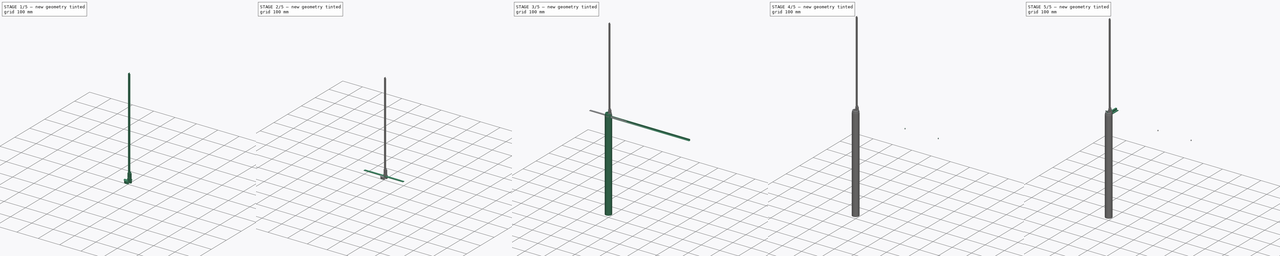
[diagram: build sequence overview — one tinted view per stage of 5, left to right]
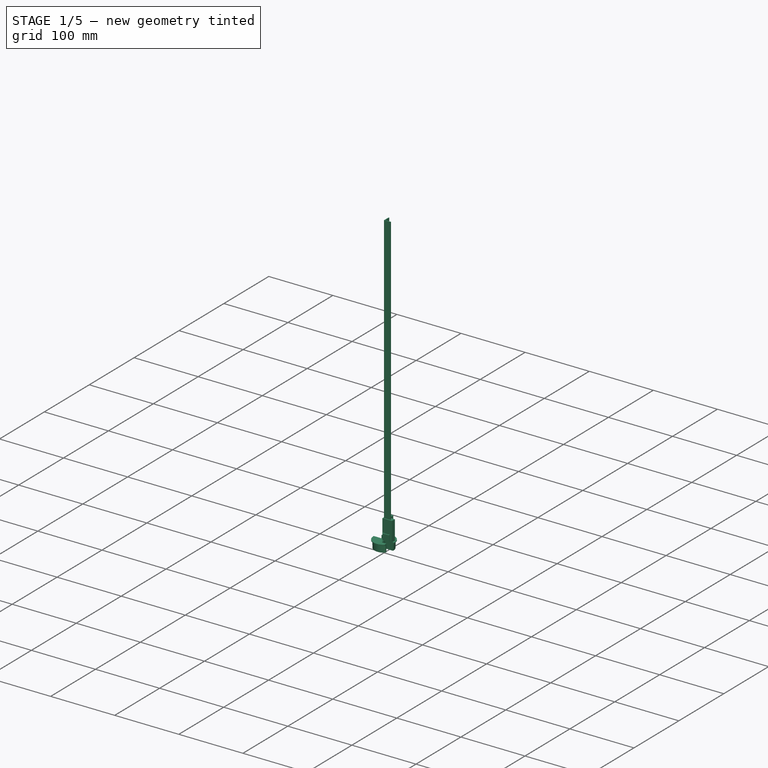
[diagram: stage 1 of 5 — iso view after this stage's code; geometry added in this stage tinted green]
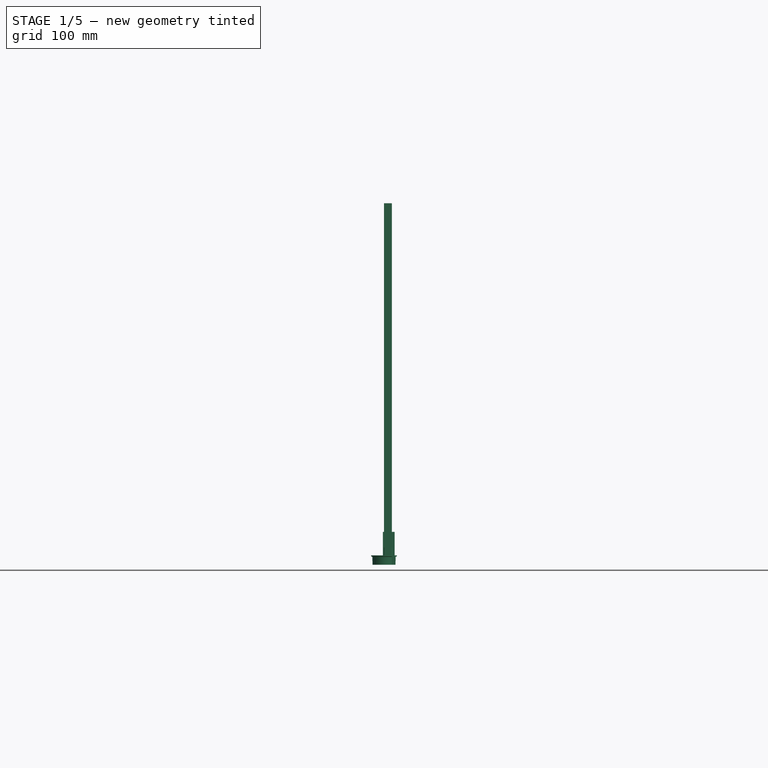
[diagram: stage 1 of 5 — front view after this stage's code; geometry added in this stage tinted green]
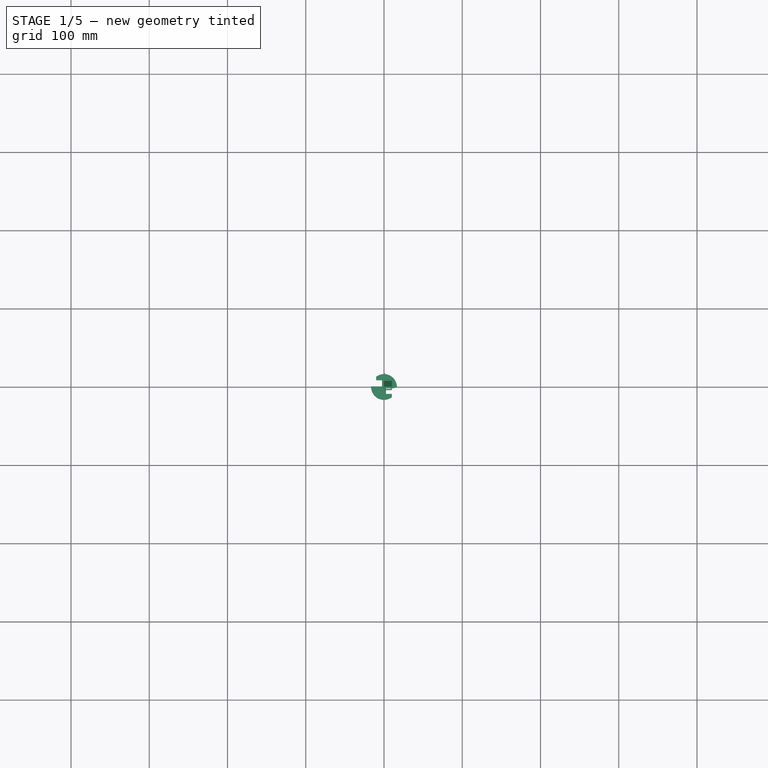
[diagram: stage 1 of 5 — top view after this stage's code; geometry added in this stage tinted green]
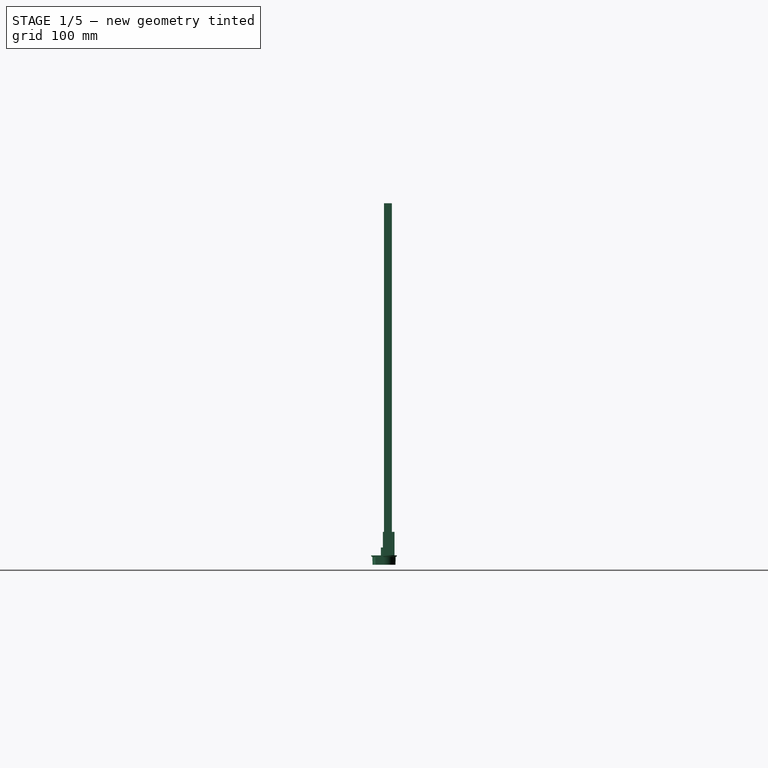
[diagram: stage 1 of 5 — right view after this stage's code; geometry added in this stage tinted green]
FCSTD DOCUMENT  (FreeCAD 0.21R33771 (Git))
Label: angleBarLamp
License: All rights reserved
LicenseURL: https://en.wikipedia.org/wiki/All_rights_reserved
objects: Sketcher::SketchObject×31, PartDesign::CoordinateSystem×21, PartDesign::Body×14, App::Link×13, PartDesign::Pad×12, Part::FeaturePython×12, PartDesign::Pocket×11, App::DocumentObjectGroup×9, PartDesign::Fillet×4, PartDesign::Plane×3, App::Part×3, PartDesign::Revolution×2, PartDesign::Groove×2, PartDesign::Chamfer×2, App::FeaturePython×1, Spreadsheet::Sheet×1, PartDesign::Hole×1, PartDesign::PolarPattern×1, PartDesign::ShapeBinder×1
note: 151 computed .brp shape members not serialized (recipe doc carries the construction recipe); baked Part::Feature solids carry a one-line shape summary decoded from their .brp

FEATURE [Sketcher::SketchObject] Sketch001
  FullyConstrained = false
  MapMode = 5
  Placement = pos=(0,0,0) rot=(1,0,0;1.5708rad)
  Support = -> [XZ_Plane001]
  sketch-geometry (4):
    g0: LineSegment StartX=0 StartY=28.2609 StartZ=0 EndX=10 EndY=28.2609 EndZ=0
    g1: LineSegment StartX=10 StartY=28.2609 StartZ=0 EndX=10 EndY=3 EndZ=0
    g2: LineSegment StartX=10 StartY=3 StartZ=0 EndX=0 EndY=3 EndZ=0
    g3: LineSegment StartX=0 StartY=3 StartZ=0 EndX=0 EndY=28.2609 EndZ=0
  constraints (11):
    c: Coincident(g0,g1)
    c: Coincident(g1,g2)
    c: Coincident(g2,g3)
    c: Coincident(g3,g0)
    c: Horizontal(g0)
    c: Horizontal(g2)
    c: Vertical(g1)
    c: Vertical(g3)
    c: PointOnObject(g0,g-2)
    c: DistanceY(g1) = 3
    c: DistanceX(g0,g0) = 10
FEATURE [Sketcher::SketchObject] Sketch017  label="sk_L-profile10mm"
  FullyConstrained = false
  MapMode = 5
  Support = -> [XY_Plane006]
  sketch-geometry (6):
    g0: LineSegment StartX=0 StartY=0 StartZ=0 EndX=0 EndY=10.1 EndZ=0
    g1: LineSegment StartX=0 StartY=10.1 StartZ=0 EndX=1.1 EndY=10.1 EndZ=0
    g2: LineSegment StartX=1.1 StartY=10.1 StartZ=0 EndX=1.1 EndY=1.1 EndZ=0
    g3: LineSegment StartX=1.1 StartY=1.1 StartZ=0 EndX=10.1 EndY=1.1 EndZ=0
    g4: LineSegment StartX=10.1 StartY=1.1 StartZ=0 EndX=10.1 EndY=0 EndZ=0
    g5: LineSegment StartX=10.1 StartY=0 StartZ=0 EndX=0 EndY=0 EndZ=0
  constraints (17):
    c: Coincident(g-1,g0)
    c: PointOnObject(g0,g-2)
    c: Coincident(g0,g1)
    c: Horizontal(g1)
    c: Coincident(g1,g2)
    c: Vertical(g2)
    c: Coincident(g2,g3)
    c: Horizontal(g3)
    c: Coincident(g3,g4)
    c: Coincident(g4,g5)
    c: Coincident(g5,g0)
    c: Horizontal(g5)
    c: Vertical(g4)
    c: DistanceY(g0,g0) = 10.1
    c: Equal(g0,g5)
    c: DistanceX(g1,g1) = 1.1
    c: Equal(g1,g4)
FEATURE [PartDesign::Pad] Pad005  label="L-profile10mm"
  AllowMultiFace = false
  Direction = (0,0,1)
  Length = 450
  Length2 = 100
  Profile = -> Sketch017
  Type = 0
  expr: Length = Spreadsheet.l_arms
FEATURE [PartDesign::Body] Body006  label="template_L-profile_10mm_foot"
  Group = -> [Sketch017,Pad005,LCS_angleBar10]
  Origin = -> Origin006
  Tip = -> Pad005
FEATURE [Sketcher::SketchObject] Sketch028  label="sk_cableClipProfile"
  FullyConstrained = true
  MapMode = 5
  Support = -> [XY_Plane028]
  sketch-geometry (30):
    g0: LineSegment StartX=0 StartY=0 StartZ=0 EndX=0 EndY=10.1 EndZ=0
    g1: LineSegment StartX=0 StartY=10.1 StartZ=0 EndX=1.2 EndY=10.1 EndZ=0
    g2: LineSegment StartX=1.2 StartY=10.1 StartZ=0 EndX=1.2 EndY=1.2 EndZ=0
    g3: LineSegment StartX=1.2 StartY=1.2 StartZ=0 EndX=10.1 EndY=1.2 EndZ=0
    g4: LineSegment StartX=10.1 StartY=1.2 StartZ=0 EndX=10.1 EndY=0 EndZ=0
    g5: LineSegment StartX=10.1 StartY=0 StartZ=0 EndX=0 EndY=0 EndZ=0
    g6: LineSegment StartX=6.1 StartY=1.2 StartZ=0 EndX=6.1 EndY=2.7 EndZ=0
    g7: LineSegment StartX=6.1 StartY=2.7 StartZ=0 EndX=11.6 EndY=2.7 EndZ=0
    g8: LineSegment StartX=11.6 StartY=2.7 StartZ=0 EndX=11.6 EndY=-1.5 EndZ=0
    g9: LineSegment StartX=11.6 StartY=-1.5 StartZ=0 EndX=10.05 EndY=-1.5 EndZ=0
    g10: LineSegment StartX=-1.5 StartY=-1.5 StartZ=0 EndX=-1.5 EndY=5 EndZ=0
    g11: LineSegment StartX=-1.5 StartY=5 StartZ=0 EndX=0 EndY=5 EndZ=0
    g12: LineSegment StartX=0 StartY=5 StartZ=0 EndX=0 EndY=0 EndZ=0
    g13: LineSegment StartX=0 StartY=0 StartZ=0 EndX=1.55 EndY=0 EndZ=0
    g14: LineSegment StartX=10.1 StartY=0 StartZ=0 EndX=10.1 EndY=1.2 EndZ=0
    g15: LineSegment StartX=10.1 StartY=1.2 StartZ=0 EndX=6.1 EndY=1.2 EndZ=0
    g16: LineSegment StartX=-1.5 StartY=-1.5 StartZ=0 EndX=0 EndY=0 EndZ=0
    g17: LineSegment StartX=11.6 StartY=2.7 StartZ=0 EndX=10.1 EndY=1.2 EndZ=0
    g18: LineSegment StartX=1.55 StartY=0 StartZ=0 EndX=1.55 EndY=-2.5 EndZ=0
    g19: LineSegment StartX=1.55 StartY=-2.5 StartZ=0 EndX=8.55 EndY=-2.5 EndZ=0
    g20: LineSegment StartX=8.55 StartY=-2.5 StartZ=0 EndX=8.55 EndY=0 EndZ=0
    g21: LineSegment StartX=10.05 StartY=-1.5 StartZ=0 EndX=10.05 EndY=-4 EndZ=0
    g22: LineSegment StartX=10.05 StartY=-4 StartZ=0 EndX=0.05 EndY=-4 EndZ=0
    g23: LineSegment StartX=0.05 StartY=-4 StartZ=0 EndX=0.05 EndY=-1.5 EndZ=0
    g24: LineSegment StartX=8.55 StartY=0 StartZ=0 EndX=10.1 EndY=0 EndZ=0
    g25: LineSegment StartX=0.05 StartY=-1.5 StartZ=0 EndX=-1.5 EndY=-1.5 EndZ=0
    g26: LineSegment StartX=0.05 StartY=-1.5 StartZ=0 EndX=1.55 EndY=0 EndZ=0
    g27: LineSegment StartX=8.55 StartY=0 StartZ=0 EndX=10.05 EndY=-1.5 EndZ=0
    g28: LineSegment StartX=8.55 StartY=-2.5 StartZ=0 EndX=10.05 EndY=-4 EndZ=0
    g29: LineSegment StartX=0.05 StartY=-4 StartZ=0 EndX=1.55 EndY=-2.5 EndZ=0
  constraints (78):
    c: Coincident(g0,g1)
    c: Coincident(g1,g2)
    c: Coincident(g2,g3)
    c: Coincident(g3,g4)
    c: Coincident(g4,g5)
    c: Coincident(g0,g5)
    c: Coincident(g0,g-1)
    c: Horizontal(g1)
    c: Horizontal(g3)
    c: Horizontal(g5)
    c: Vertical(g0)
    c: Vertical(g2)
    c: Vertical(g4)
    c: Equal(g1,g4)
    c: Equal(g5,g0)
    c: DistanceX(g5,g5) = 10.1
    c: DistanceY(g4,g4) = 1.2
    c: Coincident(g6,g7)
    c: Coincident(g7,g8)
    c: Coincident(g8,g9)
    c: Coincident(g25,g10)
    c: Coincident(g10,g11)
    c: Coincident(g11,g12)
    c: Coincident(g12,g13)
    c: Coincident(g24,g14)
    c: Coincident(g14,g15)
    c: Coincident(g15,g6)
    c: Coincident(g3,g14)
    c: Coincident(g4,g24)
    c: PointOnObject(g6,g3)
    c: PointOnObject(g11,g0)
    c: Coincident(g0,g12)
    c: Vertical(g8)
    c: Vertical(g6)
    c: Horizontal(g9)
    c: Horizontal(g11)
    c: Horizontal(g7)
    c: Equal(g11,g6)
    c: DistanceX(g11,g11) = 1.5
    c: Vertical(g10)
    c: Coincident(g17,g14)
    c: Coincident(g17,g7)
    c: Angle(g7,g17) = 0.785398
    c: Angle(g16,g10) = 0.785398
    c: Coincident(g25,g16)
    c: Coincident(g0,g16)
    c: DistanceX(g15,g15) = 4
    c: DistanceY(g12,g12) = 5
    c: Coincident(g18,g19)
    c: Coincident(g19,g20)
    c: Coincident(g21,g22)
    c: Coincident(g22,g23)
    c: Coincident(g13,g18)
    c: Coincident(g24,g20)
    c: Tangent(g13,g24)
    c: Coincident(g9,g21)
    c: Tangent(g9,g25)
    c: Vertical(g23)
    c: Vertical(g18)
    c: Vertical(g20)
    c: Vertical(g21)
    c: Horizontal(g19)
    c: Horizontal(g22)
    c: DistanceX(g19,g19) = 7
    c: Coincident(g18,g29)
    c: Coincident(g22,g29)
    c: Coincident(g19,g28)
    c: Coincident(g21,g28)
    c: Coincident(g20,g27)
    c: Coincident(g9,g27)
    c: Parallel(g16,g26)
    c: Parallel(g26,g29)
    c: Coincident(g13,g26)
    c: Coincident(g23,g25)
    c: Coincident(g23,g26)
    c: Angle(g28,g22) = 0.785398
    c: Equal(g13,g24)
    c: DistanceY(g20,g20) = 2.5
FEATURE [PartDesign::Pad] Pad010  label="cableClipExtrude"
  AllowMultiFace = false
  Direction = (1,1,1)
  Length = 10
  Length2 = 100
  Profile = -> Sketch028
  Refine = true
  Type = 0
FEATURE [PartDesign::Fillet] Fillet002  label="cableClipFillet"
  Base = -> Pad010 [Edge23,Edge17,Edge14,Edge8,Edge11,Edge5,Edge26,Edge2,Edge20]
  BaseFeature = -> Pad010
  Radius = 0.5
  Refine = true
  SupportTransform = true
  UseAllEdges = false
FEATURE [PartDesign::Body] Body  label="b_cableClip"
  Group = -> [Sketch028,Pad010,Fillet002,LCS_1]
  Origin = -> Origin028
  Tip = -> Fillet002
FEATURE [Sketcher::SketchObject] Sketch030
  FullyConstrained = true
  MapMode = 5
  Placement = pos=(0,0,0) rot=(1,0,0;1.5708rad)
  Support = -> [XZ_Plane002]
  expr: Constraints[6] = Spreadsheet.motionAngle
  sketch-geometry (3):
    g0: LineSegment StartX=6.5 StartY=-7.5 StartZ=0 EndX=-1.5 EndY=-7.5 EndZ=0
    g1: LineSegment StartX=-1.5 StartY=-7.5 StartZ=0 EndX=-1.5 EndY=-4.58824 EndZ=0
    g2: LineSegment StartX=-1.5 StartY=-4.58824 StartZ=0 EndX=6.5 EndY=-7.5 EndZ=0
  constraints (9):
    c: Horizontal(g0)
    c: DistanceY(g0,g-1) = 7.5
    c: Coincident(g0,g1)
    c: Vertical(g1)
    c: Coincident(g1,g2)
    c: Coincident(g0,g2)
    c: Angle(g2,g0) = 0.349066
    c: DistanceX(g0) = 6.5
    c: DistanceX(g0,g0) = 8
FEATURE [Sketcher::SketchObject] Sketch031
  FullyConstrained = true
  MapMode = 5
  Support = -> [XY_Plane021]
  expr: Constraints[24] = Spreadsheet.w_wall_center / 2
  expr: Constraints[27] = Spreadsheet.r_outer
  expr: Constraints[6] = Spreadsheet.r_outer
  sketch-geometry (11):
    g0: ArcOfCircle CenterX=0 CenterY=0 CenterZ=0 NormalX=0 NormalY=0 NormalZ=1 AngleXU=0 Radius=16.5 StartAngle=6.23772 EndAngle=8.50508
    g1: ArcOfCircle CenterX=0 CenterY=0 CenterZ=0 NormalX=0 NormalY=0 NormalZ=1 AngleXU=0 Radius=16.5 StartAngle=3.09612 EndAngle=5.36349
    g2: LineSegment StartX=16.4829 StartY=-0.75 StartZ=0 EndX=2.5 EndY=-0.75 EndZ=0
    g3: LineSegment StartX=-16.4829 StartY=0.75 StartZ=0 EndX=-2.5 EndY=0.75 EndZ=0
    g4: LineSegment StartX=-2.5 StartY=0.75 StartZ=0 EndX=-2.5 EndY=8.85 EndZ=0
    g5: LineSegment StartX=-2.5 StartY=8.85 StartZ=0 EndX=-10 EndY=8.85 EndZ=0
    g6: LineSegment StartX=-10 StartY=8.85 StartZ=0 EndX=-10 EndY=13.1244 EndZ=0
    g7: LineSegment StartX=10 StartY=-13.1244 StartZ=0 EndX=10 EndY=-8.85 EndZ=0
    g8: LineSegment StartX=10 StartY=-8.85 StartZ=0 EndX=2.5 EndY=-8.85 EndZ=0
    g9: LineSegment StartX=2.5 StartY=-8.85 StartZ=0 EndX=2.5 EndY=-0.75 EndZ=0
    g10: Circle CenterX=0 CenterY=0 CenterZ=0 NormalX=0 NormalY=0 NormalZ=1 AngleXU=0 Radius=16.5
  constraints (30):
    c: Coincident(g0,g-1)
    c: Coincident(g1,g0)
    c: Symmetric(g0,g1,g0)
    c: Coincident(g3,g1)
    c: DistanceX(g2) = 2.5
    c: Symmetric(g2,g3,g0)
    c: Radius(g1) = 16.5
    c: Coincident(g3,g4)
    c: Vertical(g4)
    c: Coincident(g4,g5)
    c: Horizontal(g5)
    c: Coincident(g5,g6)
    c: Vertical(g6)
    c: DistanceX(g5,g0) = 10
    c: Vertical(g7)
    c: Coincident(g7,g8)
    c: Horizontal(g8)
    c: Coincident(g8,g9)
    c: Coincident(g9,g2)
    c: Vertical(g9)
    c: Equal(g9,g4)
    c: Horizontal(g2)
    c: Coincident(g0,g2)
    c: Horizontal(g3)
    c: DistanceY(g3) = 0.75
    c: DistanceY(g9,g9) = 8.1
    c: Coincident(g10,g0)
    c: Radius(g10) = 16.5
    c: Coincident(g1,g7)
    c: Coincident(g0,g6)
FEATURE [PartDesign::Pad] Pad011
  Direction = (0,0,1)
  Length = 12
  Length2 = 100
  Profile = -> Sketch031
  Reversed = true
  Type = 0
  expr: Length = Spreadsheet.h_topBlockBase
FEATURE [Sketcher::SketchObject] Sketch032
  AttachmentOffset = pos=(0,0,-0.6) rot=(0,0,1;0rad)
  FullyConstrained = false
  MapMode = 5
  Placement = pos=(0,0,-0.6) rot=(0,0,1;0rad)
  Support = -> [XY_Plane021]
  sketch-geometry (6):
    g0: LineSegment StartX=-0.55 StartY=3.04345 StartZ=0 EndX=9.55 EndY=3.04345 EndZ=0
    g1: LineSegment StartX=9.55 StartY=3.04345 StartZ=0 EndX=9.55 EndY=1.94345 EndZ=0
    g2: LineSegment StartX=9.55 StartY=1.94345 StartZ=0 EndX=0.55 EndY=1.94345 EndZ=0
    g3: LineSegment StartX=0.55 StartY=1.94345 StartZ=0 EndX=0.55 EndY=-7.05655 EndZ=0
    g4: LineSegment StartX=0.55 StartY=-7.05655 StartZ=0 EndX=-0.55 EndY=-7.05655 EndZ=0
    g5: LineSegment StartX=-0.55 StartY=-7.05655 StartZ=0 EndX=-0.55 EndY=3.04345 EndZ=0
  constraints (16):
    c: Horizontal(g0)
    c: Coincident(g0,g1)
    c: Vertical(g1)
    c: Coincident(g1,g2)
    c: Horizontal(g2)
    c: Coincident(g2,g3)
    c: Coincident(g3,g4)
    c: Coincident(g4,g5)
    c: Coincident(g5,g0)
    c: Vertical(g5)
    c: Equal(g4,g1)
    c: DistanceX(g0,g0) = 10.1
    c: DistanceY(g1,g1) = 1.1
    c: Equal(g5,g0)
    c: Vertical(g3)
    c: Symmetric(g3,g4,g-2)
FEATURE [PartDesign::Pocket] Pocket009
  BaseFeature = -> Pad011
  Direction = (0,0,-1)
  Length = 15
  Length2 = 100
  Profile = -> Sketch032
  Type = 1
FEATURE [Sketcher::SketchObject] Sketch035
  AttachmentOffset = pos=(0,0,-10) rot=(0,0,1;0rad)
  FullyConstrained = true
  MapMode = 5
  Placement = pos=(0,0,-10) rot=(0,0,1;0rad)
  Support = -> [XY_Plane021]
  sketch-geometry (6):
    g0: LineSegment StartX=0.55 StartY=2.15 StartZ=0 EndX=1.65 EndY=2.15 EndZ=0
    g1: LineSegment StartX=1.65 StartY=2.15 StartZ=0 EndX=1.65 EndY=-8.15 EndZ=0
    g2: LineSegment StartX=1.65 StartY=-8.15 StartZ=0 EndX=-8.45 EndY=-8.15 EndZ=0
    g3: LineSegment StartX=-8.45 StartY=-8.15 StartZ=0 EndX=-8.45 EndY=-7.05 EndZ=0
    g4: LineSegment StartX=-8.45 StartY=-7.05 StartZ=0 EndX=0.55 EndY=-7.05 EndZ=0
    g5: LineSegment StartX=0.55 StartY=-7.05 StartZ=0 EndX=0.55 EndY=2.15 EndZ=0
  constraints (18):
    c: Horizontal(g0)
    c: Coincident(g0,g1)
    c: Vertical(g1)
    c: Coincident(g1,g2)
    c: Horizontal(g2)
    c: Coincident(g2,g3)
    c: Coincident(g3,g4)
    c: Horizontal(g4)
    c: Coincident(g4,g5)
    c: Coincident(g5,g0)
    c: Equal(g0,g3)
    c: Vertical(g3)
    c: DistanceY(g1,g1) = 10.3
    c: DistanceX(g0,g0) = 1.1
    c: DistanceX(g2,g2) = 10.1
    c: Vertical(g5)
    c: DistanceX(g4) = 0.55
    c: DistanceY(g4) = -7.05
FEATURE [PartDesign::Pocket] Pocket010
  BaseFeature = -> Pocket009
  Direction = (0,0,-1)
  Length = 5
  Length2 = 100
  Profile = -> Sketch035
  Type = 0
FEATURE [Sketcher::SketchObject] Sketch039
  FullyConstrained = true
  MapMode = 5
  Support = -> [XY_Plane023]
  sketch-geometry (6):
    g0: LineSegment StartX=5 StartY=5 StartZ=0 EndX=13.5 EndY=5 EndZ=0
    g1: LineSegment StartX=13.5 StartY=5 StartZ=0 EndX=13.5 EndY=-1.5 EndZ=0
    g2: LineSegment StartX=13.5 StartY=-1.5 StartZ=0 EndX=-1.5 EndY=-1.5 EndZ=0
    g3: LineSegment StartX=-1.5 StartY=-1.5 StartZ=0 EndX=-1.5 EndY=13.5 EndZ=0
    g4: LineSegment StartX=-1.5 StartY=13.5 StartZ=0 EndX=5 EndY=13.5 EndZ=0
    g5: LineSegment StartX=5 StartY=13.5 StartZ=0 EndX=5 EndY=5 EndZ=0
  constraints (18):
    c: Horizontal(g0)
    c: Coincident(g0,g1)
    c: Vertical(g1)
    c: Coincident(g1,g2)
    c: Coincident(g2,g3)
    c: Coincident(g3,g4)
    c: Horizontal(g4)
    c: Coincident(g4,g5)
    c: Coincident(g5,g0)
    c: Vertical(g5)
    c: Vertical(g3)
    c: Horizontal(g2)
    c: Equal(g3,g2)
    c: DistanceX(g2,g2) = 15
    c: Equal(g1,g4)
    c: DistanceX(g4,g4) = 6.5
    c: DistanceX(g2,g-1) = 1.5
    c: DistanceY(g2,g-1) = 1.5
FEATURE [PartDesign::Pad] Pad
  Direction = (1,1,1)
  Length = 30
  Length2 = 100
  Profile = -> Sketch039
  Type = 0
FEATURE [Sketcher::SketchObject] Sketch046
  FullyConstrained = false
  MapMode = 5
  Placement = pos=(0,0,0) rot=(0.57735,0.57735,0.57735;2.0944rad)
  Support = -> [YZ_Plane021]
  expr: Constraints[11] = Spreadsheet.r_outer
  expr: Constraints[12] = Spreadsheet.r_inner
  sketch-geometry (6):
    g0: LineSegment StartX=16.5 StartY=0 StartZ=0 EndX=16.5 EndY=-1.08055 EndZ=0
    g1: LineSegment StartX=16.5 StartY=-1.08055 StartZ=0 EndX=14.9353 EndY=-1.99693 EndZ=0
    g2: LineSegment StartX=14.9353 StartY=-1.99693 StartZ=0 EndX=14.625 EndY=-13.5266 EndZ=0
    g3: LineSegment StartX=14.625 StartY=-13.5266 StartZ=0 EndX=22.4612 EndY=-13.5266 EndZ=0
    g4: LineSegment StartX=22.4612 StartY=-13.5266 StartZ=0 EndX=22.4612 EndY=0 EndZ=0
    g5: LineSegment StartX=22.4612 StartY=0 StartZ=0 EndX=16.5 EndY=0 EndZ=0
  constraints (13):
    c: PointOnObject(g0,g-1)
    c: Vertical(g0)
    c: Coincident(g0,g1)
    c: Coincident(g1,g2)
    c: Coincident(g2,g3)
    c: Horizontal(g3)
    c: Coincident(g3,g4)
    c: Vertical(g4)
    c: Coincident(g4,g5)
    c: Horizontal(g5)
    c: Coincident(g0,g5)
    c: DistanceX(g0) = 16.5
    c: DistanceX(g2) = 14.625
FEATURE [PartDesign::Groove] Groove
  Angle = 360
  Axis = (-2e-16,3e-16,1)
  Base = (0,0,0)
  BaseFeature = -> Pocket010
  Profile = -> Sketch046
  ReferenceAxis = -> Sketch046 [V_Axis]
  Refine = true
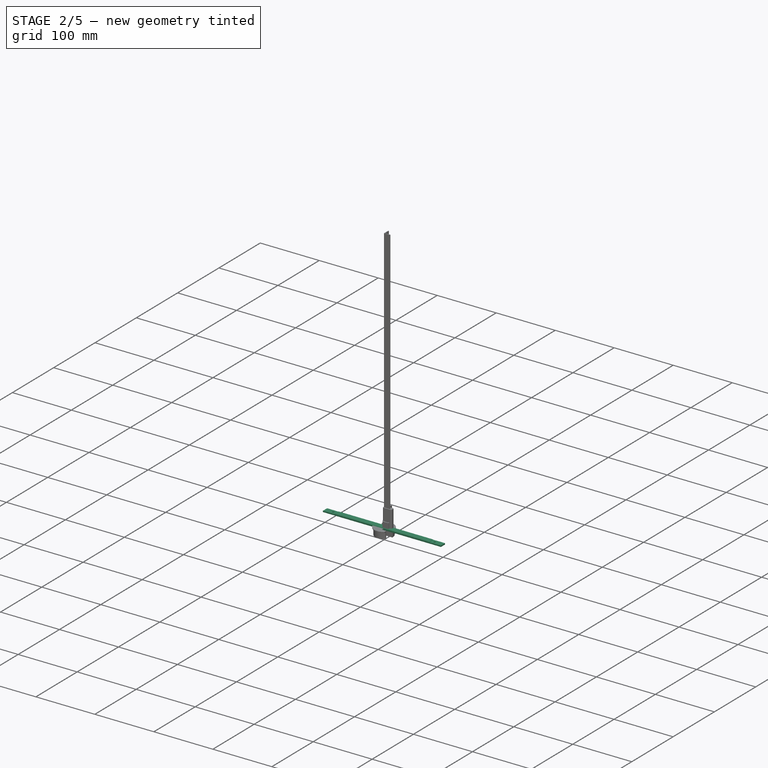
[diagram: stage 2 of 5 — iso view after this stage's code; geometry added in this stage tinted green]
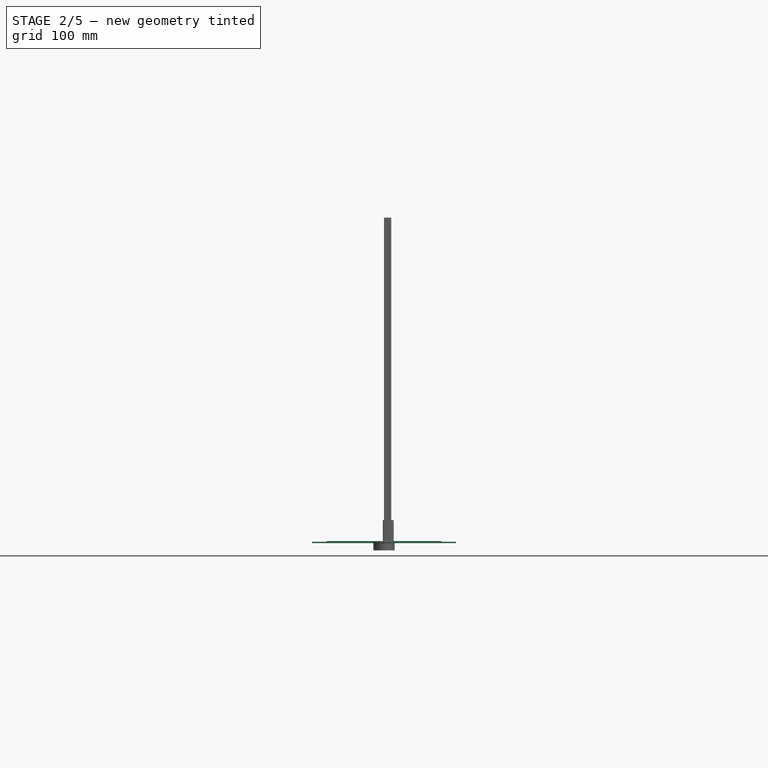
[diagram: stage 2 of 5 — front view after this stage's code; geometry added in this stage tinted green]
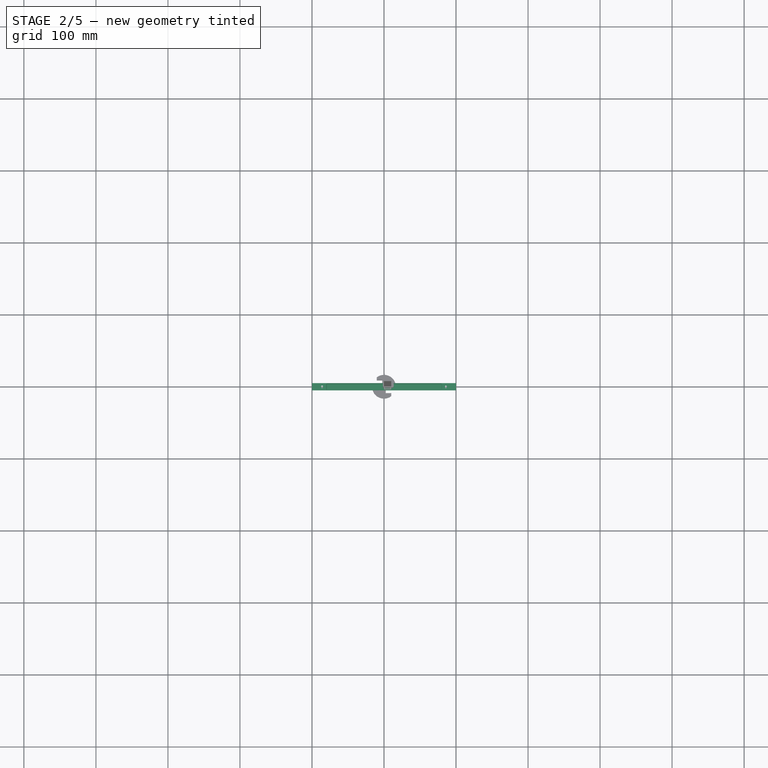
[diagram: stage 2 of 5 — top view after this stage's code; geometry added in this stage tinted green]
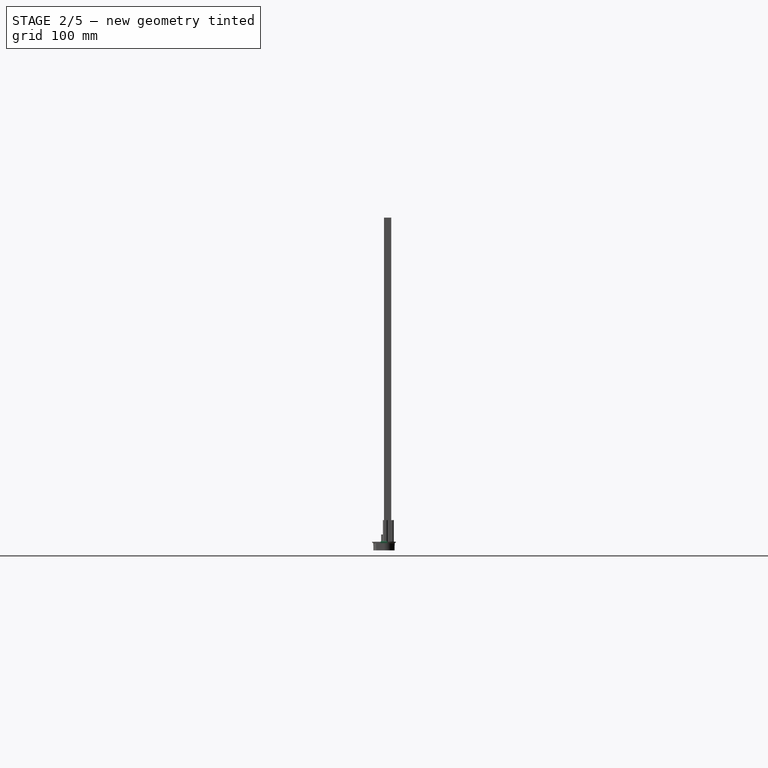
[diagram: stage 2 of 5 — right view after this stage's code; geometry added in this stage tinted green]
FEATURE [Sketcher::SketchObject] Sketch040
  FullyConstrained = true
  MapMode = 2
  Support = -> [X_Axis023]
  sketch-geometry (6):
    g0: LineSegment StartX=1 StartY=11.1 StartZ=0 EndX=2.1 EndY=11.1 EndZ=0
    g1: LineSegment StartX=2.1 StartY=11.1 StartZ=0 EndX=2.1 EndY=2.1 EndZ=0
    g2: LineSegment StartX=2.1 StartY=2.1 StartZ=0 EndX=11.1 EndY=2.1 EndZ=0
    g3: LineSegment StartX=11.1 StartY=2.1 StartZ=0 EndX=11.1 EndY=1 EndZ=0
    g4: LineSegment StartX=11.1 StartY=1 StartZ=0 EndX=1 EndY=1 EndZ=0
    g5: LineSegment StartX=1 StartY=1 StartZ=0 EndX=1 EndY=11.1 EndZ=0
  constraints (18):
    c: Coincident(g0,g1)
    c: Vertical(g1)
    c: Coincident(g1,g2)
    c: Horizontal(g2)
    c: Coincident(g2,g3)
    c: Vertical(g3)
    c: Coincident(g3,g4)
    c: Horizontal(g4)
    c: Coincident(g4,g5)
    c: Coincident(g5,g0)
    c: Vertical(g5)
    c: Horizontal(g0)
    c: Equal(g3,g0)
    c: Equal(g5,g4)
    c: DistanceX(g4,g4) = 10.1
    c: DistanceX(g0,g0) = 1.1
    c: DistanceY(g4) = 1
    c: DistanceX(g4) = 1
FEATURE [Sketcher::SketchObject] Sketch041
  FullyConstrained = true
  MapMode = 5
  Placement = pos=(0,0,30) rot=(0,0,1;0rad)
  Support = -> [DatumPlane001]
  sketch-geometry (6):
    g0: LineSegment StartX=0 StartY=10.1 StartZ=0 EndX=1.1 EndY=10.1 EndZ=0
    g1: LineSegment StartX=1.1 StartY=10.1 StartZ=0 EndX=1.1 EndY=1.1 EndZ=0
    g2: LineSegment StartX=1.1 StartY=1.1 StartZ=0 EndX=10.1 EndY=1.1 EndZ=0
    g3: LineSegment StartX=10.1 StartY=1.1 StartZ=0 EndX=10.1 EndY=0 EndZ=0
    g4: LineSegment StartX=10.1 StartY=0 StartZ=0 EndX=0 EndY=0 EndZ=0
    g5: LineSegment StartX=0 StartY=0 StartZ=0 EndX=0 EndY=10.1 EndZ=0
  constraints (17):
    c: Coincident(g0,g1)
    c: Vertical(g1)
    c: Coincident(g1,g2)
    c: Horizontal(g2)
    c: Coincident(g2,g3)
    c: Vertical(g3)
    c: Coincident(g3,g4)
    c: Horizontal(g4)
    c: Coincident(g4,g5)
    c: Coincident(g5,g0)
    c: Vertical(g5)
    c: Horizontal(g0)
    c: Equal(g3,g0)
    c: Equal(g5,g4)
    c: DistanceX(g4,g4) = 10.1
    c: DistanceX(g0,g0) = 1.1
    c: Coincident(g4,g-1)
FEATURE [PartDesign::Pocket] Pocket012
  BaseFeature = -> Pad
  Direction = (1,1,1)
  Length = 28
  Length2 = 100
  Profile = -> Sketch041
  Type = 0
FEATURE [PartDesign::Pocket] Pocket013
  BaseFeature = -> Pocket012
  Direction = (1,1,1)
  Length = 28
  Length2 = 100
  Profile = -> Sketch040
  Reversed = true
  Type = 0
FEATURE [Sketcher::SketchObject] Sketch042
  FullyConstrained = true
  MapMode = 5
  Support = -> [XY_Plane023]
  sketch-geometry (6):
    g0: LineSegment StartX=2 StartY=2.1 StartZ=0 EndX=3.1 EndY=2.1 EndZ=0
    g1: LineSegment StartX=3.1 StartY=2.1 StartZ=0 EndX=3.1 EndY=12.2 EndZ=0
    g2: LineSegment StartX=3.1 StartY=12.2 StartZ=0 EndX=-7 EndY=12.2 EndZ=0
    g3: LineSegment StartX=-7 StartY=12.2 StartZ=0 EndX=-7 EndY=11.1 EndZ=0
    g4: LineSegment StartX=-7 StartY=11.1 StartZ=0 EndX=2 EndY=11.1 EndZ=0
    g5: LineSegment StartX=2 StartY=11.1 StartZ=0 EndX=2 EndY=2.1 EndZ=0
  constraints (18):
    c: Horizontal(g0)
    c: Coincident(g0,g1)
    c: Vertical(g1)
    c: Coincident(g1,g2)
    c: Horizontal(g2)
    c: Coincident(g2,g3)
    c: Coincident(g3,g4)
    c: Horizontal(g4)
    c: Coincident(g4,g5)
    c: Coincident(g5,g0)
    c: Vertical(g5)
    c: Vertical(g3)
    c: Equal(g3,g0)
    c: Equal(g1,g2)
    c: DistanceY(g1,g1) = 10.1
    c: DistanceX(g0,g0) = 1.1
    c: DistanceY(g-1,g0) = 2.1
    c: DistanceX(g-1,g0) = 2
FEATURE [PartDesign::Pocket] Pocket014
  BaseFeature = -> Pocket013
  Direction = (0,0,-1)
  Length = 18
  Length2 = 100
  Profile = -> Sketch042
  Reversed = true
  Type = 0
FEATURE [App::Link] nut
  AttachedBy = #LCS_0001
  AttachedTo = Parent Assembly#LCS_2
  AttachmentOffset = pos=(0,-7.6,0) rot=(1,0,0;1.5708rad)
  LinkPlacement = pos=(6.5,-8.35,3) rot=(1,0,0;1.5708rad)
  LinkedObject = -> b_nut
  Placement = pos=(6.5,-8.35,3) rot=(1,0,0;1.5708rad)
  SolverId = Asm4EE
  expr: Placement = LCS_2.Placement * AttachmentOffset * LCS_0001.Placement ^ -1
FEATURE [App::Link] spacer
  AttachedBy = #LCS_0003
  AttachedTo = LProfile_8mm_A#LCS_1004
  AttachmentOffset = pos=(0,-1,0) rot=(-1,0,0;4.71239rad)
  LinkPlacement = pos=(6.5,-1.75,3) rot=(-1,0,0;4.71239rad)
  LinkedObject = -> b_spacer
  Placement = pos=(6.5,-1.75,3) rot=(-1,0,0;4.71239rad)
  SolverId = Asm4EE
  expr: Placement = LProfile_8mm_A.Placement * LCS_1004.Placement * AttachmentOffset * LCS_0003.Placement ^ -1
FEATURE [Part::FeaturePython] Circular_spacer  # Draft array (typed FeaturePython)
  AngleStep = 180
  ArrayType = Circular Array
  Axis = -> Z_Axis
  AxisPlacement = pos=(0,0,0) rot=(0,0,1.73205;3.14159rad)
  Count = 2
  Index = 1
  PlacementList = 2 placements: [(6.5,-1.75,3),(-6.5,1.75,3)]
  Placer = pos=(0,0,0) rot=(0,0,1;3.14159rad)
  ScaleList = (2) [(1,1,1),(1,1,1)]
  Scaler = 1
  ShowElement = false
  SourceObject = -> spacer
  expr: .Placer.Rotation.Angle = AngleStep * Index
  expr: AngleStep = 360 / Count
FEATURE [Part::FeaturePython] Circular_nut  # Draft array (typed FeaturePython)
  AngleStep = 180
  ArrayType = Circular Array
  Axis = -> Z_Axis
  AxisPlacement = pos=(0,0,0) rot=(0,0,1.73205;3.14159rad)
  Count = 2
  Index = 1
  PlacementList = 2 placements: [(6.5,-8.35,3),(-6.5,8.35,3)]
  Placer = pos=(0,0,0) rot=(0,0,1;3.14159rad)
  ScaleList = (2) [(1,1,1),(1,1,1)]
  Scaler = 1
  ShowElement = false
  SourceObject = -> nut
  expr: .Placer.Rotation.Angle = AngleStep * Index
  expr: AngleStep = 360 / Count
FEATURE [Part::FeaturePython] Circular_Screw  label="Circular_M3x28-Screw"  # Draft array (typed FeaturePython)
  AngleStep = 180
  ArrayType = Circular Array
  Axis = -> Z_Axis
  AxisPlacement = pos=(0,0,0) rot=(0,0,1.73205;3.14159rad)
  Count = 2
  Index = 1
  PlacementList = 2 placements: [(6.5,13.15,3),(-6.5,-13.15,3)]
  Placer = pos=(0,0,0) rot=(0,0,1;3.14159rad)
  ScaleList = (2) [(1,1,1),(1,1,1)]
  Scaler = 1
  ShowElement = false
  SourceObject = -> Screw
  expr: .Placer.Rotation.Angle = AngleStep * Index
  expr: AngleStep = 360 / Count
FEATURE [PartDesign::CoordinateSystem] LCS_1005
  AttacherType = Attacher::AttachEngine3D
  MapMode = 2
  Support = -> [X_Axis032]
FEATURE [PartDesign::CoordinateSystem] LCS_1006
  AttacherType = Attacher::AttachEngine3D
  MapMode = 2
  Support = -> [X_Axis033]
FEATURE [PartDesign::CoordinateSystem] LCS_1007
  AttacherType = Attacher::AttachEngine3D
  MapMode = 2
  Support = -> [X_Axis034]
FEATURE [Sketcher::SketchObject] Sketch056
  FullyConstrained = true
  MapMode = 5
  Support = -> [XY_Plane032]
  sketch-geometry (8):
    g0: LineSegment StartX=-100 StartY=5 StartZ=0 EndX=100 EndY=5 EndZ=0
    g1: LineSegment StartX=100 StartY=5 StartZ=0 EndX=100 EndY=-5 EndZ=0
    g2: LineSegment StartX=100 StartY=-5 StartZ=0 EndX=-100 EndY=-5 EndZ=0
    g3: LineSegment StartX=-100 StartY=-5 StartZ=0 EndX=-100 EndY=5 EndZ=0
    g4: Circle CenterX=-86 CenterY=0 CenterZ=0 NormalX=0 NormalY=0 NormalZ=1 AngleXU=0 Radius=1.5
    g5: Circle CenterX=86 CenterY=0 CenterZ=0 NormalX=0 NormalY=0 NormalZ=1 AngleXU=0 Radius=1.5
    g6: LineSegment StartX=-100 StartY=0 StartZ=0 EndX=-86 EndY=0 EndZ=0
    g7: LineSegment StartX=86 StartY=0 StartZ=0 EndX=100 EndY=0 EndZ=0
  constraints (22):
    c: Coincident(g0,g1)
    c: Coincident(g2,g3)
    c: Coincident(g3,g0)
    c: Horizontal(g2)
    c: Vertical(g1)
    c: Symmetric(g2,g0,g-1)
    c: DistanceX(g0,g0) = 200
    c: DistanceY(g1,g1) = 10
    c: PointOnObject(g5,g-1)
    c: PointOnObject(g6,g3)
    c: Horizontal(g6)
    c: DistanceX(g6,g6) = 14
    c: Equal(g4,g5)
    c: Diameter(g4) = 3
    c: Coincident(g1,g2)
    c: Coincident(g6,g4)
    c: Symmetric(g0,g0,g-2)
    c: Coincident(g7,g5)
    c: PointOnObject(g7,g1)
    c: Horizontal(g7)
    c: Equal(g7,g6)
    c: PointOnObject(g4,g-1)
FEATURE [PartDesign::Pad] Pad018
  Direction = (0,0,1)
  Length = 2
  Length2 = 10
  Profile = -> Sketch056
  ReferenceAxis = -> Sketch056 [N_Axis]
  Reversed = true
  Type = 0
FEATURE [PartDesign::Body] b_led_heatsink
  Group = -> [LCS_1005,Sketch056,Pad018]
  Origin = -> Origin032
  Tip = -> Pad018
FEATURE [Sketcher::SketchObject] Sketch057
  FullyConstrained = true
  MapMode = 5
  Support = -> [XY_Plane033]
  sketch-geometry (10):
    g0: ArcOfCircle CenterX=-79 CenterY=3.5 CenterZ=0 NormalX=0 NormalY=0 NormalZ=1 AngleXU=0 Radius=1 StartAngle=1.5708 EndAngle=3.14159
    g1: LineSegment StartX=-79 StartY=4.5 StartZ=0 EndX=79 EndY=4.5 EndZ=0
    g2: ArcOfCircle CenterX=79 CenterY=3.5 CenterZ=0 NormalX=0 NormalY=0 NormalZ=1 AngleXU=0 Radius=1 StartAngle=2e-16 EndAngle=1.5708
    g3: LineSegment StartX=80 StartY=3.5 StartZ=0 EndX=80 EndY=-3.5 EndZ=0
    g4: ArcOfCircle CenterX=79 CenterY=-3.5 CenterZ=0 NormalX=0 NormalY=0 NormalZ=1 AngleXU=0 Radius=1 StartAngle=4.71239 EndAngle=6.28319
    g5: LineSegment StartX=79 StartY=-4.5 StartZ=0 EndX=-79 EndY=-4.5 EndZ=0
    g6: ArcOfCircle CenterX=-79 CenterY=-3.5 CenterZ=0 NormalX=0 NormalY=0 NormalZ=1 AngleXU=0 Radius=1 StartAngle=3.14159 EndAngle=4.71239
    g7: LineSegment StartX=-80 StartY=-3.5 StartZ=0 EndX=-80 EndY=3.5 EndZ=0
    g8: GeomPoint X=-80 Y=4.5 Z=0
    g9: GeomPoint X=80 Y=-4.5 Z=0
  constraints (22):
    c: Tangent(g0,g1) = 1.5708
    c: Tangent(g1,g2) = 1.5708
    c: Tangent(g2,g3) = 1.5708
    c: Tangent(g3,g4) = 1.5708
    c: Tangent(g4,g5) = 1.5708
    c: Tangent(g5,g6) = 1.5708
    c: Tangent(g6,g7) = 1.5708
    c: Tangent(g7,g0) = 1.5708
    c: Horizontal(g1)
    c: Horizontal(g5)
    c: Vertical(g3)
    c: Vertical(g7)
    c: Equal(g0,g2)
    c: PointOnObject(g8,g1)
    c: PointOnObject(g8,g7)
    c: PointOnObject(g9,g3)
    c: PointOnObject(g9,g5)
    c: DistanceX(g0,g2) = 160
    c: Radius(g2) = 1
    c: DistanceY(g5,g0) = 9
    c: Symmetric(g6,g0,g-1)
    c: Symmetric(g4,g6,g-2)
FEATURE [PartDesign::Pad] Pad019
  Direction = (0,0,1)
  Length = 1
  Length2 = 10
  Profile = -> Sketch057
  ReferenceAxis = -> Sketch057 [N_Axis]
  Type = 0
FEATURE [PartDesign::Fillet] Fillet004
  Base = -> Pad019 [Edge13]
  BaseFeature = -> Pad019
  Radius = 0.9
  SupportTransform = false
  UseAllEdges = false
FEATURE [Part::FeaturePython] Circular_Screw001  label="Circular_M3x4-LEDScrew_A"  # Draft array (typed FeaturePython)
  AngleStep = 180
  ArrayType = Circular Array
  Axis = -> Z_Axis
  AxisPlacement = pos=(0,0,0) rot=(0,0,1.73205;3.14159rad)
  Count = 2
  Index = 1
  PlacementList = 2 placements: [(431.5,-5.25,-3.5),(-431.5,5.25,-3.5)]
  Placer = pos=(0,0,0) rot=(0,0,1;3.14159rad)
  ScaleList = (2) [(1,1,1),(1,1,1)]
  Scaler = 1
  ShowElement = false
  SourceObject = -> Screw001
  expr: .Placer.Rotation.Angle = AngleStep * Index
  expr: AngleStep = 360 / Count
FEATURE [Part::FeaturePython] Circular_Screw002  label="Circular_M3x4-LEDScrew_B"  # Draft array (typed FeaturePython)
  AngleStep = 180
  ArrayType = Circular Array
  Axis = -> Z_Axis
  AxisPlacement = pos=(0,0,0) rot=(0,0,1.73205;3.14159rad)
  Count = 2
  Index = 1
  PlacementList = 2 placements: [(259.5,-5.25,-3.5),(-259.5,5.25,-3.5)]
  Placer = pos=(0,0,0) rot=(0,0,1;3.14159rad)
  ScaleList = (2) [(1,1,1),(1,1,1)]
  Scaler = 1
  ShowElement = false
  SourceObject = -> Screw002
  expr: .Placer.Rotation.Angle = AngleStep * Index
  expr: AngleStep = 360 / Count
FEATURE [App::DocumentObjectGroup] Group002  label="g_Fasteners"
  Group = -> [Screw,nut,spacer,Circular_spacer,Circular_nut,Circular_Screw,Screw001,Screw002,Circular_Screw001,Circular_Screw002]
FEATURE [Part::FeaturePython] Circular_led_assembly  # Draft array (typed FeaturePython)
  AngleStep = 180
  ArrayType = Circular Array
  Axis = -> Z_Axis
  AxisPlacement = pos=(0,0,0) rot=(0,0,1.73205;3.14159rad)
  Count = 2
  Index = 1
  PlacementList = 2 placements: [(345.5,-5.25,-3.5),(-345.5,5.25,-3.5)]
  Placer = pos=(0,0,0) rot=(0,0,1;3.14159rad)
  ScaleList = (2) [(1,1,1),(1,1,1)]
  Scaler = 1
  ShowElement = false
  SourceObject = -> led_assembly
  expr: .Placer.Rotation.Angle = AngleStep * Index
  expr: AngleStep = 360 / Count
FEATURE [App::Link] pipe_dn32
  AttachedBy = #LCS_0007
  AttachedTo = Parent Assembly#LCS_Origin
  AttachmentOffset = pos=(-25,-25,-508) rot=(0,0,1;0rad)
  LinkPlacement = pos=(-25,-25,-508) rot=(0,0,1;0rad)
  LinkedObject = -> b_tube_dn32
  Placement = pos=(-25,-25,-508) rot=(0,0,1;0rad)
  SolverId = Asm4EE
  expr: .AttachmentOffset.Base.x = Variables.time < Variables.motion2_start ? -25 : (Variables.time < Variables.motion3_start ? Variables.pipeopen_xpos : 0)
  expr: .AttachmentOffset.Base.y = Variables.time < Variables.motion2_start ? -25 : (Variables.time < Variables.motion3_start ? Variables.pipeopen_xpos : 0)
  expr: .AttachmentOffset.Base.z = Variables.time < Variables.motion4_start ? Variables.pipe_zoffset + Variables.pipe_zopen : (Variables.time < Variables.motion4_end ? Variables.pipeopen_zpos : Variables.pipe_zoffset)
  expr: Placement = LCS_Origin.Placement * AttachmentOffset * LCS_0007.Placement ^ -1
FEATURE [App::Link] bottom_plug  label="base_cap"
  AttachedBy = #LCS_bottom_blog
  AttachedTo = pipe_dn32#LCS_0007
  AttachmentOffset = pos=(0,0,-480) rot=(0,1,0;4.71239rad)
  LinkPlacement = pos=(-25,-25,-993) rot=(0,0,1;4.71239rad)
  LinkedObject = -> Body015
  Placement = pos=(-25,-25,-993) rot=(0,0,1;4.71239rad)
  SolverId = Asm4EE
  expr: Placement = pipe_dn32.Placement * LCS_0007.Placement * AttachmentOffset * LCS_bottom_blog.Placement ^ -1
FEATURE [App::DocumentObjectGroup] Group003  label="g_Housing"
  Group = -> [pipe_dn32,bottom_plug]
FEATURE [App::DocumentObjectGroup] Group005  label="LEDs"
  Group = -> [Circular_led_assembly]
FEATURE [PartDesign::Fillet] Fillet005
  Base = -> Pocket014 [Edge8,Edge32,Edge2,Edge5]
  BaseFeature = -> Pocket014
  Radius = 2
  SupportTransform = false
  UseAllEdges = false
FEATURE [PartDesign::Body] b_bottom_connector
  Group = -> [LCS_0004,Sketch039,Pad,DatumPlane001,Sketch040,Sketch041,Pocket012,Pocket013,Sketch042,Pocket014,Fillet005]
  Origin = -> Origin023
  Placement = pos=(0,0,0) rot=(0.707107,0.707107,0;3.14159rad)
  Tip = -> Fillet005
FEATURE [App::Part] p_bottom_connector
  Group = -> [LCS_1003,b_bottom_connector]
  Origin = -> Origin029
FEATURE [App::DocumentObjectGroup] Parts
  Group = -> [Body,Body006,Body015,b_tube_dn32,b_topBlockCap,b_topBlockBase,b_topBlockArmLock,p_bottom_connector,b_stencil,b_spacer,b_nut,Sketch048,b_LProfile_8mm,p_led_assembly]
FEATURE [App::Link] cableClip
  AttachedBy = #LCS_1
  AttachedTo = L_profile_10mm_foot_A#LCS_angleBar10
  AttachmentOffset = pos=(0,0,32) rot=(0,0,1;0rad)
  LinkPlacement = pos=(-0.5,3.05,-40) rot=(1,0,0;3.14159rad)
  LinkedObject = -> Body
  Placement = pos=(-0.5,3.05,-40) rot=(1,0,0;3.14159rad)
  SolverId = Asm4EE
  expr: Placement = L_profile_10mm_foot_A.Placement * LCS_angleBar10.Placement * AttachmentOffset * LCS_1.Placement ^ -1
FEATURE [Part::FeaturePython] Linear_cableClip  # Draft array (typed FeaturePython)
  ArrayType = Linear Array
  Axis = -> Z_Axis
  AxisPlacement = pos=(0,0,0) rot=(0,0,1.73205;3.14159rad)
  Count = 3
  Index = 1
  LinearStep = -160
  PlacementList = 3 placements: arithmetic series from (-0.5,3.05,-40) step (-3.54716e-14,0,-160) to (-0.5,3.05,-360)
  Placer = pos=(0,0,-320) rot=(0,0,1;0rad)
  ScaleList = (3) [(1,1,1),(1,1,1),(1,1,1)]
  Scaler = 1
  ShowElement = false
  SourceObject = -> cableClip
  expr: .Placer.Base.z = LinearStep * Index
FEATURE [App::Part] Assembly
  AssemblyType = Part::Link
  Group = -> [LCS_Origin,Constraints,Variables,Configurations,Group,Group001,Group002,Group003,topBlockBase,topBlockCap,topBlockArmLock,Circular_topBlockArmLock,master_a,LCS_3,LCS_2,Group004,LProfile_8mm_A,Circular_LProfile_8mm_A,L_profile_10mm_foot_A,bottom_connector,spacer,Circular_spacer,nut,Circular_nut,Screw,Circular_Screw,L_profile_10mm_foot_B,Screw001,Circular_Screw001,Screw002,Circular_Screw002,+7 more]
  Origin = -> Origin
  Type = Assembly
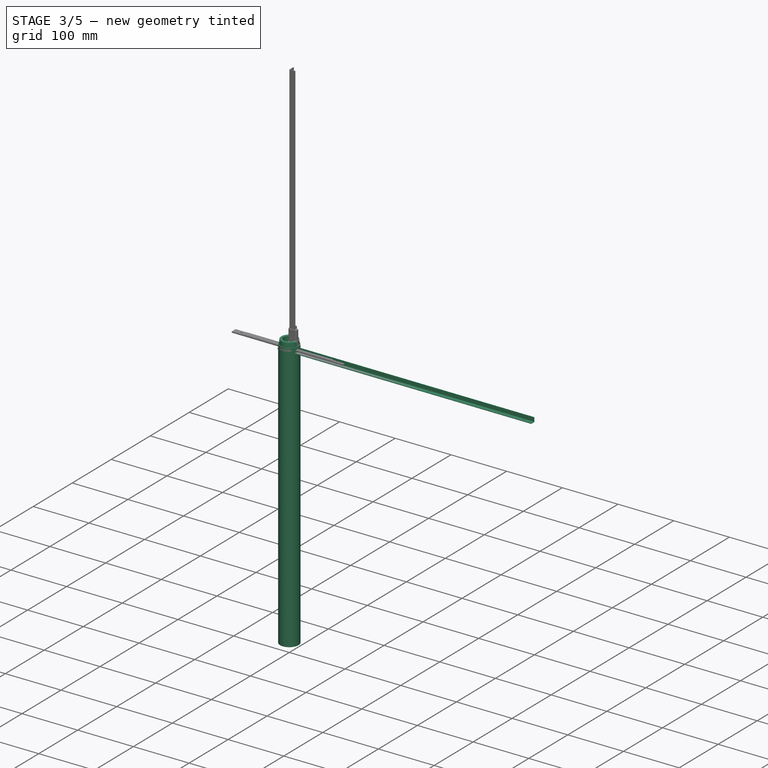
[diagram: stage 3 of 5 — iso view after this stage's code; geometry added in this stage tinted green]
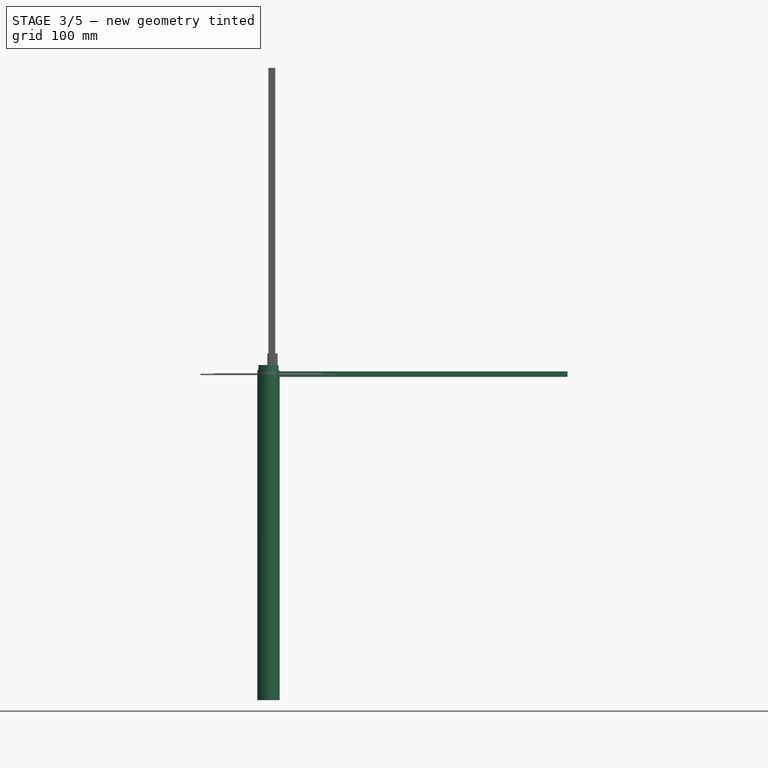
[diagram: stage 3 of 5 — front view after this stage's code; geometry added in this stage tinted green]
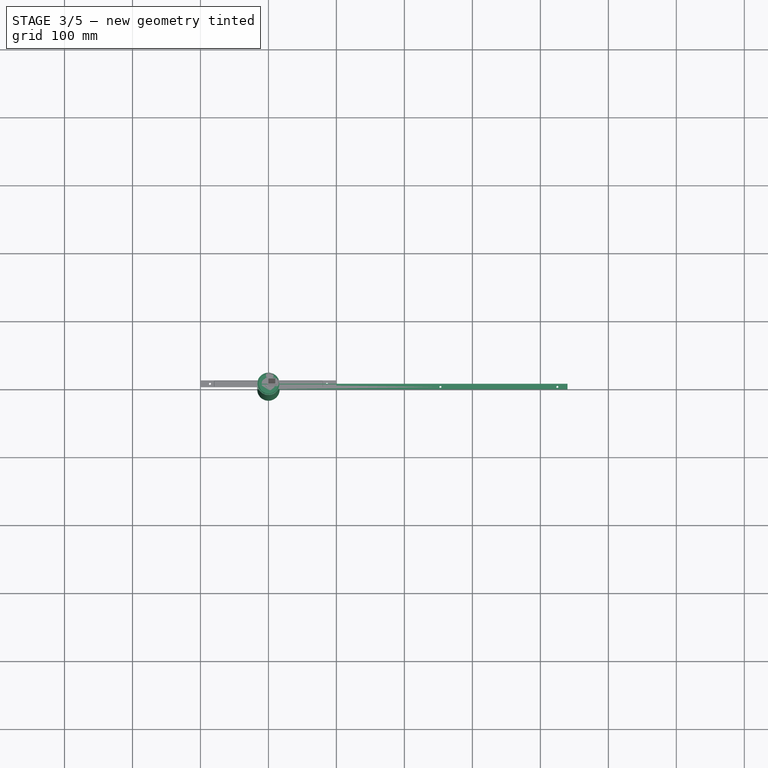
[diagram: stage 3 of 5 — top view after this stage's code; geometry added in this stage tinted green]
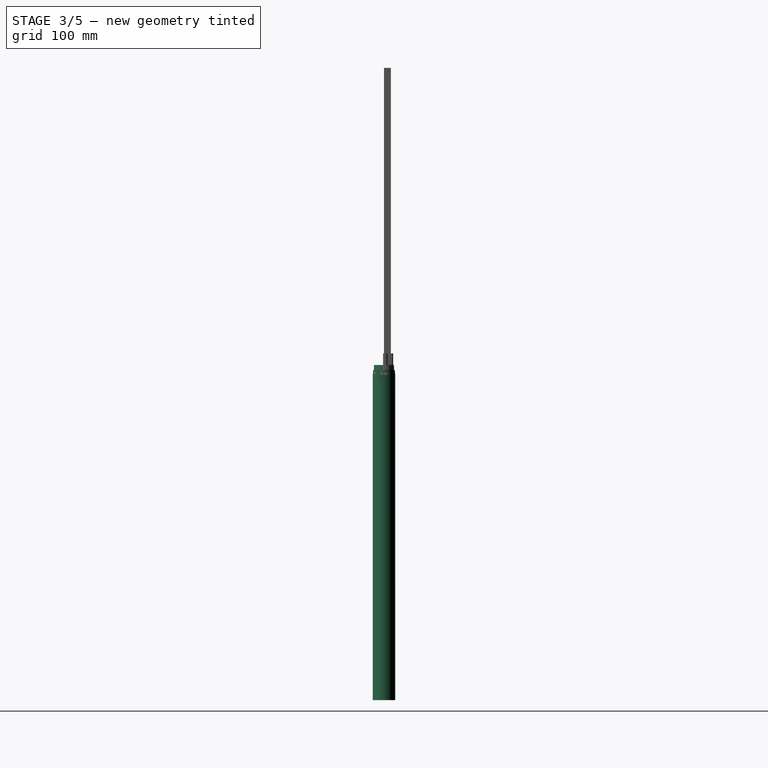
[diagram: stage 3 of 5 — right view after this stage's code; geometry added in this stage tinted green]
FEATURE [Sketcher::SketchObject] Sketch051
  FullyConstrained = true
  MapMode = 5
  Support = -> [XY_Plane026]
  sketch-geometry (2):
    g0: Circle CenterX=0 CenterY=0 CenterZ=0 NormalX=0 NormalY=0 NormalZ=1 AngleXU=0 Radius=16.5
    g1: Circle CenterX=0 CenterY=0 CenterZ=0 NormalX=0 NormalY=0 NormalZ=1 AngleXU=0 Radius=14.5
  constraints (4):
    c: Coincident(g0,g-1)
    c: Radius(g0) = 16.5
    c: Coincident(g1,g0)
    c: Radius(g1) = 14.5
FEATURE [PartDesign::Pad] Pad016
  Direction = (0,0,1)
  Length = 480
  Length2 = 100
  Profile = -> Sketch051
  Refine = true
  Reversed = true
  Type = 0
FEATURE [PartDesign::Chamfer] Chamfer
  Angle = 45
  Base = -> Pad016 [Edge5]
  BaseFeature = -> Pad016
  ChamferType = 0
  FlipDirection = false
  Refine = true
  Size = 1
  Size2 = 1
  SupportTransform = false
  UseAllEdges = false
FEATURE [Sketcher::SketchObject] Sketch052
  FullyConstrained = true
  MapMode = 5
  Placement = pos=(0,0,0) rot=(1,0,0;1.5708rad)
  Support = -> [XZ_Plane001]
  sketch-geometry (6):
    g0: LineSegment StartX=0 StartY=0 StartZ=0 EndX=16.25 EndY=0 EndZ=0
    g1: LineSegment StartX=16.25 StartY=0 StartZ=0 EndX=16.25 EndY=5 EndZ=0
    g2: LineSegment StartX=16.25 StartY=5 StartZ=0 EndX=15 EndY=5 EndZ=0
    g3: LineSegment StartX=15 StartY=5 StartZ=0 EndX=15 EndY=13 EndZ=0
    g4: LineSegment StartX=15 StartY=13 StartZ=0 EndX=0 EndY=13 EndZ=0
    g5: LineSegment StartX=0 StartY=13 StartZ=0 EndX=0 EndY=0 EndZ=0
  constraints (17):
    c: Coincident(g-1,g0)
    c: Horizontal(g0)
    c: Coincident(g0,g1)
    c: Coincident(g1,g2)
    c: Horizontal(g2)
    c: Coincident(g2,g3)
    c: Coincident(g3,g4)
    c: Horizontal(g4)
    c: Coincident(g4,g5)
    c: Coincident(g5,g0)
    c: Vertical(g5)
    c: Vertical(g1)
    c: Vertical(g3)
    c: DistanceY(g3,g3) = 8
    c: DistanceY(g1,g1) = 5
    c: DistanceX(g4,g4) = 15
    c: DistanceX(g0,g0) = 16.25
FEATURE [PartDesign::Revolution] Revolution001
  Angle = 360
  Axis = (0,2e-16,1)
  Base = (0,0,0)
  Placement = pos=(0,0,0) rot=(1,0,0;1.5708rad)
  Profile = -> Sketch052
  ReferenceAxis = -> Sketch052 [V_Axis]
  Reversed = true
FEATURE [PartDesign::Chamfer] Chamfer001
  Angle = 3
  Base = -> Revolution001 [Edge5]
  BaseFeature = -> Revolution001
  ChamferType = 2
  FlipDirection = false
  Placement = pos=(0,0,0) rot=(1,0,0;1.5708rad)
  Size = 7
  Size2 = 1
  SupportTransform = false
  UseAllEdges = false
FEATURE [PartDesign::Groove] Groove001
  Angle = 360
  Axis = (0,2e-16,1)
  Base = (0,0,0)
  BaseFeature = -> Chamfer001
  Placement = pos=(0,0,0) rot=(1,0,0;1.5708rad)
  Profile = -> Sketch001
  ReferenceAxis = -> Sketch001 [V_Axis]
FEATURE [PartDesign::Body] Body015  label="b_base_cap"
  Group = -> [Sketch052,Revolution001,Chamfer001,Sketch001,Groove001,LCS_bottom_blog]
  Origin = -> Origin030
  Tip = -> Groove001
FEATURE [PartDesign::Body] b_nut
  Group = -> [LCS_0001,Sketch037,Revolution,Sketch038,Pocket011,PolarPattern]
  Origin = -> Origin002
  Tip = -> PolarPattern
FEATURE [PartDesign::Body] b_spacer
  Group = -> [LCS_0003,Sketch034,Pad013]
  Origin = -> Origin022
  Tip = -> Pad013
FEATURE [PartDesign::Body] b_stencil
  Group = -> [LCS_0005,ShapeBinder,Sketch049,Pad014,Pocket017]
  Origin = -> Origin024
  Tip = -> Pocket017
FEATURE [PartDesign::Body] b_topBlockArmLock
  Group = -> [LCS_0,Sketch,Pad009,Sketch030,DatumPlane,Sketch033,Pocket,Sketch036,Hole,Sketch045,Pocket016]
  Origin = -> Origin001
  Tip = -> Pocket016
FEATURE [PartDesign::Body] b_topBlockBase
  Group = -> [LCS_0002,Sketch031,Pad011,Sketch032,Pocket009,Sketch035,Pocket010,Sketch043,DatumPlane002,Sketch046,Groove]
  Origin = -> Origin021
  Tip = -> Groove
FEATURE [PartDesign::Body] b_topBlockCap
  Group = -> [LCS_0006,Sketch050,Pad015,Fillet]
  Origin = -> Origin025
  Tip = -> Fillet
FEATURE [PartDesign::Body] b_tube_dn32  label="b_pipe_dn32"
  Group = -> [LCS_0007,Sketch051,Pad016,Chamfer]
  Origin = -> Origin026
  Tip = -> Chamfer
FEATURE [Sketcher::SketchObject] master_a
  AttachmentOffset = pos=(0,0,3) rot=(0,0,1;0rad)
  FullyConstrained = false
  MapMode = 2
  Placement = pos=(0,0,3) rot=(0,0,1;0rad)
  Support = -> [X_Axis]
  expr: Constraints[9] = Spreadsheet.screw_offset
  sketch-geometry (5):
    g0: LineSegment StartX=-6.5 StartY=12.6363 StartZ=0 EndX=-6.5 EndY=0 EndZ=0
    g1: LineSegment StartX=6.5 StartY=0 StartZ=0 EndX=6.5 EndY=-12.6363 EndZ=0
    g2: Circle CenterX=0 CenterY=0 CenterZ=0 NormalX=0 NormalY=0 NormalZ=1 AngleXU=0 Radius=18
    g3: LineSegment StartX=-6.5 StartY=0 StartZ=0 EndX=6.5 EndY=0 EndZ=0
    g4: Circle CenterX=0 CenterY=0 CenterZ=0 NormalX=0 NormalY=0 NormalZ=1 AngleXU=0 Radius=14
  constraints (12):
    c: Vertical(g0)
    c: Vertical(g1)
    c: Equal(g0,g1)
    c: Coincident(g2,g-1)
    c: Radius(g2) = 18  'dn40_limit'
    c: PointOnObject(g0,g-1)
    c: Symmetric(g1,g0,g2)
    c: Coincident(g3,g0)
    c: Coincident(g3,g1)
    c: DistanceX(g2,g1) = 6.5
    c: Coincident(g4,g2)
    c: Radius(g4) = 14
FEATURE [App::Link] topBlockBase
  AttachedBy = #LCS_0002
  AttachedTo = Parent Assembly#LCS_Origin
  AttachmentOffset = pos=(0,0,-7.5) rot=(0,0,1;0rad)
  LinkPlacement = pos=(0,0,-7.5) rot=(0,0,1;0rad)
  LinkedObject = -> b_topBlockBase
  Placement = pos=(0,0,-7.5) rot=(0,0,1;0rad)
  SolverId = Asm4EE
  expr: Placement = LCS_Origin.Placement * AttachmentOffset * LCS_0002.Placement ^ -1
FEATURE [App::Link] topBlockArmLock
  AttachedBy = #LCS_0
  AttachedTo = topBlockBase#LCS_0002
  AttachmentOffset = pos=(0,0,7.5) rot=(0,0,1;0rad)
  LinkedObject = -> b_topBlockArmLock
  SolverId = Asm4EE
  expr: Placement = topBlockBase.Placement * LCS_0002.Placement * AttachmentOffset * LCS_0.Placement ^ -1
FEATURE [App::Link] topBlockCap
  AttachedBy = #LCS_0006
  AttachedTo = topBlockArmLock#LCS_0
  AttachmentOffset = pos=(0,0,16) rot=(0,0,1;0rad)
  LinkPlacement = pos=(0,0,16) rot=(0,0,1;0rad)
  LinkedObject = -> b_topBlockCap
  Placement = pos=(0,0,16) rot=(0,0,1;0rad)
  SolverId = Asm4EE
  expr: Placement = topBlockArmLock.Placement * LCS_0.Placement * AttachmentOffset * LCS_0006.Placement ^ -1
FEATURE [Part::FeaturePython] Circular_topBlockArmLock  # Draft array (typed FeaturePython)
  AngleStep = 180
  ArrayType = Circular Array
  Axis = -> Z_Axis
  AxisPlacement = pos=(0,0,0) rot=(0,0,1.73205;3.14159rad)
  Count = 2
  Index = 1
  PlacementList = 2 placements: [(0,0,0),(0,0,0)]
  Placer = pos=(0,0,0) rot=(0,0,1;3.14159rad)
  ScaleList = (2) [(1,1,1),(1,1,1)]
  Scaler = 1
  ShowElement = false
  SourceObject = -> topBlockArmLock
  expr: .Placer.Rotation.Angle = AngleStep * Index
  expr: AngleStep = 360 / Count
FEATURE [App::DocumentObjectGroup] Group  label="g_topBlock"
  Group = -> [topBlockBase,topBlockArmLock,topBlockCap,Circular_topBlockArmLock]
FEATURE [PartDesign::CoordinateSystem] LCS_2
  AttacherType = Attacher::AttachEngine3D
  AttachmentOffset = pos=(0,-0.75,0) rot=(0,0,1;0rad)
  MapMode = 1
  Placement = pos=(6.5,-0.75,3) rot=(0,0,1;0rad)
  Support = -> [master_a]
FEATURE [PartDesign::CoordinateSystem] LCS_3
  AttacherType = Attacher::AttachEngine3D
  AttachmentOffset = pos=(0,0.75,0) rot=(0,0,1;0rad)
  MapMode = 1
  Placement = pos=(-6.5,0.75,3) rot=(0,0,1;0rad)
  Support = -> [master_a]
FEATURE [App::DocumentObjectGroup] Group004  label="g_LCSs"
  Group = -> [LCS_2,LCS_3]
FEATURE [PartDesign::CoordinateSystem] LCS_1004  label="LCS_screwaxis"
  AttacherType = Attacher::AttachEngine3D
  MapMode = 2
  Support = -> [X_Axis031]
  expr: .AttachmentOffset.Base.x = Variables.time < Variables.motion2_start ? 0 : (Variables.time < Variables.motion3_start ? -Spreadsheet.l_sliding_hole * (Variables.time - Variables.motion2_start) / Variables.motion2_duration : -Spreadsheet.l_sliding_hole)
FEATURE [Sketcher::SketchObject] Sketch053
  FullyConstrained = true
  MapMode = 5
  Placement = pos=(0,0,0) rot=(0.57735,0.57735,0.57735;2.0944rad)
  Support = -> [YZ_Plane031]
  sketch-geometry (6):
    g0: LineSegment StartX=0 StartY=-4.5 StartZ=0 EndX=-8 EndY=-4.5 EndZ=0
    g1: LineSegment StartX=-8 StartY=-4.5 StartZ=0 EndX=-8 EndY=-3.5 EndZ=0
    g2: LineSegment StartX=-8 StartY=-3.5 StartZ=0 EndX=-1 EndY=-3.5 EndZ=0
    g3: LineSegment StartX=-1 StartY=-3.5 StartZ=0 EndX=-1 EndY=3.5 EndZ=0
    g4: LineSegment StartX=-1 StartY=3.5 StartZ=0 EndX=0 EndY=3.5 EndZ=0
    g5: LineSegment StartX=0 StartY=3.5 StartZ=0 EndX=0 EndY=-4.5 EndZ=0
  constraints (17):
    c: PointOnObject(g0,g-2)
    c: Horizontal(g0)
    c: Coincident(g0,g1)
    c: Coincident(g1,g2)
    c: Coincident(g2,g3)
    c: Coincident(g3,g4)
    c: PointOnObject(g4,g-2)
    c: Horizontal(g4)
    c: Coincident(g4,g5)
    c: Coincident(g5,g0)
    c: Equal(g1,g4)
    c: Vertical(g1)
    c: Equal(g0,g5)
    c: DistanceY(g5,g5) = 8
    c: DistanceY(g1,g1) = 1
    c: Horizontal(g2)
    c: Symmetric(g2,g3,g-1)
FEATURE [PartDesign::Pad] Pad017
  Direction = (1,-2e-16,3e-16)
  Length = 440
  Length2 = 16
  Placement = pos=(0,0,0) rot=(0.57735,0.57735,0.57735;2.0944rad)
  Profile = -> Sketch053
  ReferenceAxis = -> Sketch053 [N_Axis]
  Type = 4
FEATURE [Sketcher::SketchObject] Sketch054
  FullyConstrained = true
  MapMode = 5
  Placement = pos=(0,0,0) rot=(1,0,0;1.5708rad)
  Support = -> [XZ_Plane031]
  sketch-geometry (11):
    g0: ArcOfCircle CenterX=-6 CenterY=-1e-16 CenterZ=0 NormalX=0 NormalY=0 NormalZ=1 AngleXU=0 Radius=1.6 StartAngle=1.5708 EndAngle=4.71239
    g1: ArcOfCircle CenterX=0 CenterY=0 CenterZ=0 NormalX=0 NormalY=0 NormalZ=1 AngleXU=0 Radius=1.6 StartAngle=4.71239 EndAngle=7.85398
    g2: LineSegment StartX=-6 StartY=-1.6 StartZ=0 EndX=0 EndY=-1.6 EndZ=0
    g3: LineSegment StartX=5e-16 StartY=1.6 StartZ=0 EndX=-6 EndY=1.6 EndZ=0
    g4: LineSegment StartX=-16.5 StartY=4 StartZ=0 EndX=-10.5 EndY=4 EndZ=0
    g5: LineSegment StartX=-10.5 StartY=4 StartZ=0 EndX=-11.436 EndY=-0.3375 EndZ=0
    g6: ArcOfCircle CenterX=-13 CenterY=-1e-16 CenterZ=0 NormalX=0 NormalY=0 NormalZ=1 AngleXU=0 Radius=1.6 StartAngle=3.14159 EndAngle=6.07065
    g7: LineSegment StartX=-14.6 StartY=-6e-16 StartZ=0 EndX=-14.6 EndY=1.25 EndZ=0
    g8: ArcOfCircle CenterX=-15.1 CenterY=1.25 CenterZ=0 NormalX=0 NormalY=0 NormalZ=1 AngleXU=0 Radius=0.5 StartAngle=1e-16 EndAngle=1.75335
    g9: LineSegment StartX=-15.1908 StartY=1.74169 StartZ=0 EndX=-16.5 EndY=1.5 EndZ=0
    g10: LineSegment StartX=-16.5 StartY=1.5 StartZ=0 EndX=-16.5 EndY=4 EndZ=0
  constraints (28):
    c: Tangent(g0,g2) = -1.5708
    c: Tangent(g2,g1) = -1.5708
    c: Tangent(g1,g3) = -1.5708
    c: Tangent(g3,g0) = -1.5708
    c: Equal(g0,g1)
    c: Horizontal(g2)
    c: DistanceX(g3,g3) = 6
    c: Radius(g1) = 1.6
    c: Horizontal(g4)
    c: Coincident(g4,g5)
    c: Tangent(g5,g6) = 1.5708
    c: Tangent(g6,g7) = 1.5708
    c: Tangent(g7,g8) = -1.5708
    c: Coincident(g9,g10)
    c: Coincident(g10,g4)
    c: Vertical(g10)
    c: Vertical(g7)
    c: Radius(g6) = 1.6
    c: Tangent(g8,g9) = -1.5708
    c: Radius(g8) = 0.5
    c: DistanceY(g6,g8) = 1.25
    c: DistanceY(g8,g9) = 0.25
    c: Horizontal(g0,g6)
    c: DistanceX(g6,g0) = 7
    c: DistanceX(g6,g4) = 2.5
    c: DistanceX(g9,g6) = 3.5
    c: Coincident(g1,g-1)
    c: DistanceY(g6,g4) = 4
FEATURE [PartDesign::Pocket] Pocket018
  BaseFeature = -> Pad017
  Direction = (0,1,2e-16)
  Length = 5
  Length2 = 5
  Placement = pos=(0,0,0) rot=(0.57735,0.57735,0.57735;2.0944rad)
  Profile = -> Sketch054
  ReferenceAxis = -> Sketch054 [N_Axis]
  Reversed = true
  Type = 0
FEATURE [App::Link] LProfile_8mm_A
  AttachedBy = #LCS_1004
  AttachedTo = Parent Assembly#LCS_2
  LinkPlacement = pos=(6.5,-0.75,3) rot=(0,0,1;0rad)
  LinkedObject = -> b_LProfile_8mm
  Placement = pos=(6.5,-0.75,3) rot=(0,0,1;0rad)
  SolverId = Asm4EE
  expr: .AttachmentOffset.Rotation.Angle = Variables.time < Variables.motion1_start ? 0 deg : (Variables.time < Variables.motion2_start ? Variables.motion1_angle : (Variables.time > Variables.motion3_start ? (Variables.time > Variables.motion4_start ? 90 deg : Variables.motion3_angle) : Variables.motion2_angle))
  expr: Placement = LCS_2.Placement * AttachmentOffset * LCS_1004.Placement ^ -1
FEATURE [Part::FeaturePython] Circular_LProfile_8mm_A  # Draft array (typed FeaturePython)
  AngleStep = 180
  ArrayType = Circular Array
  Axis = -> Z_Axis
  AxisPlacement = pos=(0,0,0) rot=(0,0,1.73205;3.14159rad)
  Count = 2
  Index = 1
  PlacementList = 2 placements: [(6.5,-0.75,3),(-6.5,0.75,3)]
  Placer = pos=(0,0,0) rot=(0,0,1;3.14159rad)
  ScaleList = (2) [(1,1,1),(1,1,1)]
  Scaler = 1
  ShowElement = false
  SourceObject = -> LProfile_8mm_A
  expr: .Placer.Rotation.Angle = AngleStep * Index
  expr: AngleStep = 360 / Count
FEATURE [Sketcher::SketchObject] Sketch055
  FullyConstrained = true
  MapMode = 5
  Support = -> [XY_Plane031]
  expr: Constraints[2] = Spreadsheet.led_screw_offset
  expr: Constraints[5] = Spreadsheet.led_screw_pos
  sketch-geometry (2):
    g0: Circle CenterX=425 CenterY=-4.5 CenterZ=0 NormalX=0 NormalY=0 NormalZ=1 AngleXU=0 Radius=1.5
    g1: Circle CenterX=253 CenterY=-4.5 CenterZ=0 NormalX=0 NormalY=0 NormalZ=1 AngleXU=0 Radius=1.5
  constraints (6):
    c: Horizontal(g1,g0)
    c: Equal(g0,g1)
    c: DistanceX(g1,g0) = 172
    c: Diameter(g1) = 3
    c: DistanceY(g0,g-1) = 4.5
    c: DistanceX(g0) = 425
FEATURE [PartDesign::Pocket] Pocket019
  BaseFeature = -> Pocket018
  Direction = (0,0,-1)
  Length = 5
  Length2 = 5
  Placement = pos=(0,0,0) rot=(0.57735,0.57735,0.57735;2.0944rad)
  Profile = -> Sketch055
  ReferenceAxis = -> Sketch055 [N_Axis]
  Type = 0
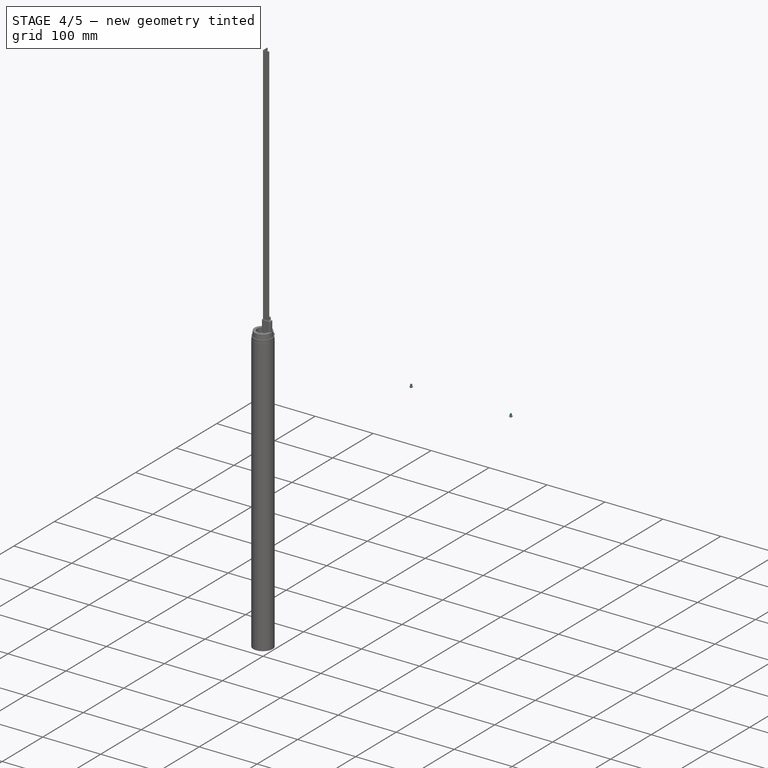
[diagram: stage 4 of 5 — iso view after this stage's code; geometry added in this stage tinted green]
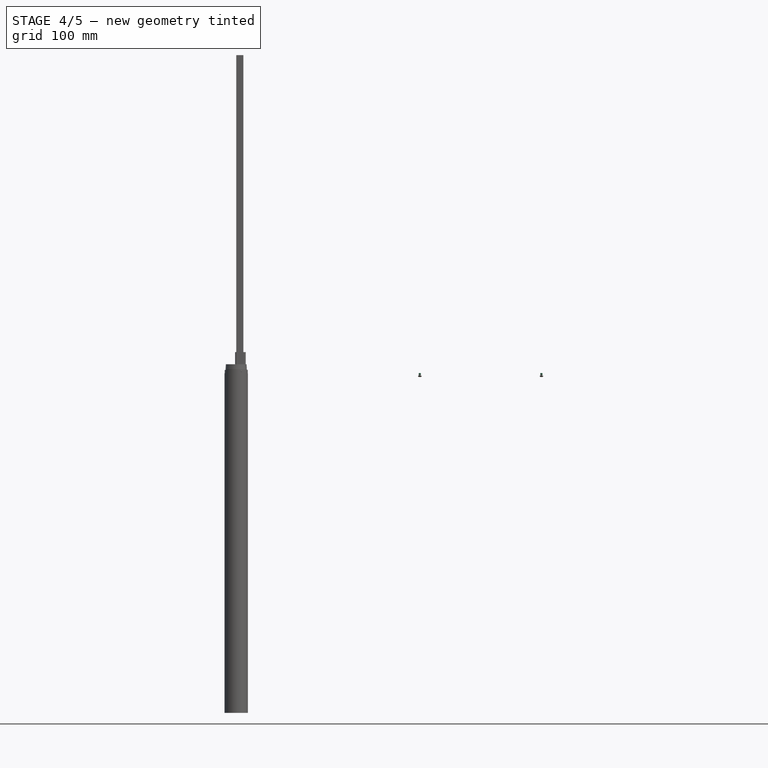
[diagram: stage 4 of 5 — front view after this stage's code; geometry added in this stage tinted green]
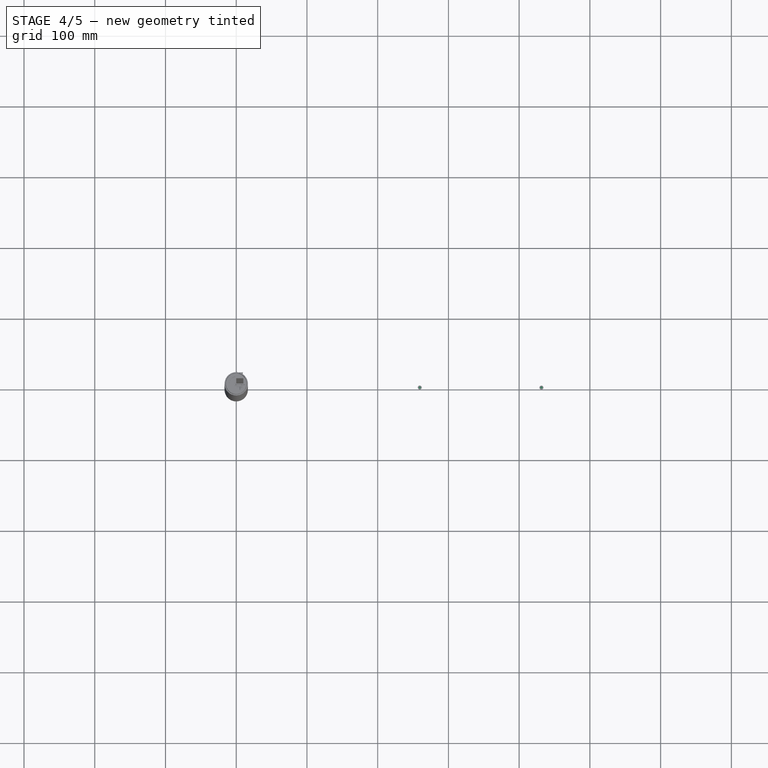
[diagram: stage 4 of 5 — top view after this stage's code; geometry added in this stage tinted green]
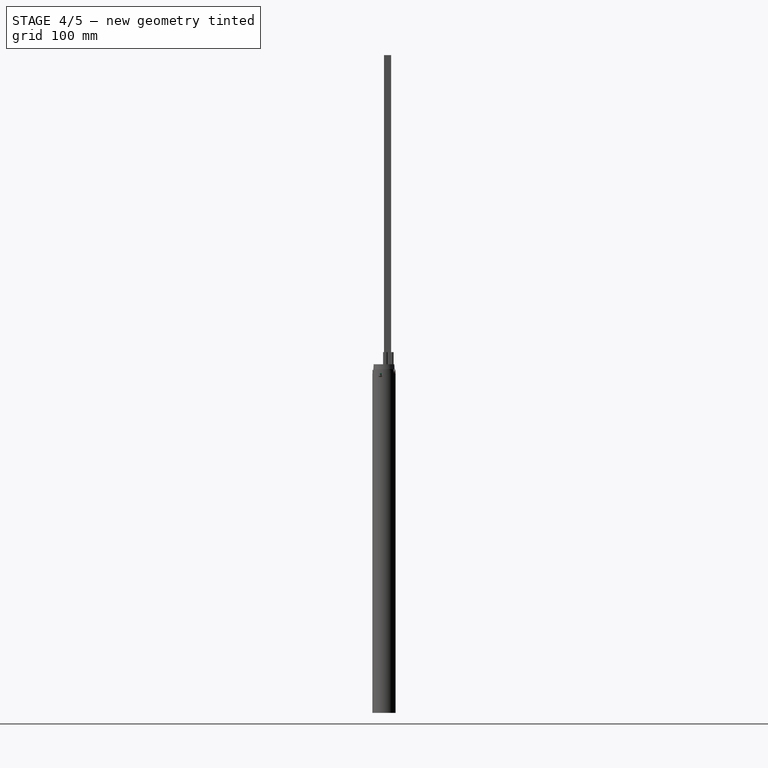
[diagram: stage 4 of 5 — right view after this stage's code; geometry added in this stage tinted green]
FEATURE [Sketcher::SketchObject] Sketch034
  FullyConstrained = false
  MapMode = 5
  Support = -> [XY_Plane022]
  sketch-geometry (6):
    g0: Circle CenterX=0 CenterY=0 CenterZ=0 NormalX=0 NormalY=0 NormalZ=1 AngleXU=0 Radius=1.9
    g1: Circle CenterX=0 CenterY=0 CenterZ=0 NormalX=0 NormalY=0 NormalZ=1 AngleXU=0 Radius=2.7
    g2: LineSegment StartX=-2.74547 StartY=3.8 StartZ=0 EndX=7.25453 EndY=3.8 EndZ=0
    g3: LineSegment StartX=7.25453 StartY=3.8 StartZ=0 EndX=7.25453 EndY=-2.7 EndZ=0
    g4: LineSegment StartX=7.25453 StartY=-2.7 StartZ=0 EndX=-2.74547 EndY=-2.7 EndZ=0
    g5: LineSegment StartX=-2.74547 StartY=-2.7 StartZ=0 EndX=-2.74547 EndY=3.8 EndZ=0
  constraints (15):
    c: Coincident(g0,g-1)
    c: Coincident(g1,g0)
    c: Radius(g0) = 1.9
    c: Radius(g1) = 2.7
    c: Coincident(g2,g3)
    c: Coincident(g3,g4)
    c: Coincident(g4,g5)
    c: Coincident(g5,g2)
    c: Horizontal(g2)
    c: Horizontal(g4)
    c: Vertical(g3)
    c: Vertical(g5)
    c: DistanceY(g3,g3) = 6.5
    c: DistanceY(g4,g0) = 2.7
    c: DistanceX(g2,g2) = 10
FEATURE [PartDesign::Pad] Pad013
  Direction = (1,1,1)
  Length = 6.5
  Length2 = 100
  Profile = -> Sketch034
  Type = 0
FEATURE [Sketcher::SketchObject] Sketch037
  FullyConstrained = true
  MapMode = 5
  Placement = pos=(0,0,0) rot=(1,0,0;1.5708rad)
  Support = -> [XZ_Plane003]
  sketch-geometry (6):
    g0: LineSegment StartX=6.1 StartY=0.5 StartZ=0 EndX=6.1 EndY=2.8 EndZ=0
    g1: LineSegment StartX=6.1 StartY=0.5 StartZ=0 EndX=3 EndY=0.5 EndZ=0
    g2: LineSegment StartX=3 StartY=0.5 StartZ=0 EndX=3 EndY=0 EndZ=0
    g3: LineSegment StartX=6.1 StartY=2.8 StartZ=0 EndX=1.5 EndY=2.8 EndZ=0
    g4: LineSegment StartX=1.5 StartY=2.8 StartZ=0 EndX=1.5 EndY=0 EndZ=0
    g5: LineSegment StartX=1.5 StartY=0 StartZ=0 EndX=3 EndY=0 EndZ=0
  constraints (18):
    c: Vertical(g0)
    c: DistanceX(g-1,g0) = 6.1
    c: DistanceY(g0,g0) = 2.3
    c: Coincident(g0,g1)
    c: Horizontal(g1)
    c: Coincident(g1,g2)
    c: Vertical(g2)
    c: DistanceX(g-1,g2) = 3
    c: Coincident(g0,g3)
    c: Horizontal(g3)
    c: Coincident(g3,g4)
    c: Vertical(g4)
    c: Coincident(g4,g5)
    c: Coincident(g5,g2)
    c: Horizontal(g5)
    c: DistanceY(g4,g4) = 2.8
    c: DistanceX(g-1,g4) = 1.5
    c: PointOnObject(g4,g-1)
FEATURE [PartDesign::Revolution] Revolution
  Angle = 360
  Axis = (0,-2e-16,1)
  Base = (0,0,0)
  Placement = pos=(0,0,0) rot=(1,0,0;1.5708rad)
  Profile = -> Sketch037
  ReferenceAxis = -> Sketch037 [V_Axis]
  Reversed = true
FEATURE [Sketcher::SketchObject] Sketch038
  FullyConstrained = false
  MapMode = 5
  Support = -> [XY_Plane002]
  sketch-geometry (1):
    g0: Circle CenterX=0 CenterY=6.12912 CenterZ=0 NormalX=0 NormalY=0 NormalZ=1 AngleXU=0 Radius=0.15
  constraints (2):
    c: PointOnObject(g0,g-2)
    c: Radius(g0) = 0.15
FEATURE [PartDesign::Pocket] Pocket011
  BaseFeature = -> Revolution
  Direction = (1,1,1)
  Length = 5
  Length2 = 100
  Placement = pos=(0,0,0) rot=(1,0,0;1.5708rad)
  Profile = -> Sketch038
  Reversed = true
  Type = 1
FEATURE [PartDesign::PolarPattern] PolarPattern
  Angle = 360
  Axis = -> Sketch038 [N_Axis]
  BaseFeature = -> Pocket011
  Occurrences = 100
  Originals = -> [Pocket011]
  Placement = pos=(0,0,0) rot=(1,0,0;1.5708rad)
FEATURE [App::Link] L_profile_10mm_foot_A  label="L-profile_10mm_foot_A"
  AttachedBy = #LCS_angleBar10
  AttachedTo = topBlockBase#LCS_0002
  AttachmentOffset = pos=(-0.5,3.05,-0.5) rot=(1,0,0;3.14159rad)
  LinkPlacement = pos=(-0.5,3.05,-8) rot=(1,0,0;3.14159rad)
  LinkedObject = -> Body006
  Placement = pos=(-0.5,3.05,-8) rot=(1,0,0;3.14159rad)
  SolverId = Asm4EE
  expr: Placement = topBlockBase.Placement * LCS_0002.Placement * AttachmentOffset * LCS_angleBar10.Placement ^ -1
FEATURE [App::Link] bottom_connector
  AttachedBy = #LCS_1003
  AttachedTo = L_profile_10mm_foot_A#LCS_angleBar10
  AttachmentOffset = pos=(0,0,452) rot=(0.71,-0.71,0;0rad)
  LinkPlacement = pos=(-0.5,3.05,-460) rot=(1,0,0;3.14159rad)
  LinkedObject = -> p_bottom_connector
  Placement = pos=(-0.5,3.05,-460) rot=(1,0,0;3.14159rad)
  SolverId = Asm4EE
  expr: .AttachmentOffset.Base.x = Variables.time < Variables.motion2_start ? 0 : (Variables.time < Variables.motion3_start ? Variables.botcon_xpos : Variables.botcon_xtravel)
  expr: .AttachmentOffset.Base.y = Variables.time < Variables.motion2_start ? 0 : (Variables.time < Variables.motion3_start ? Variables.botcon_ypos : Variables.botcon_ytravel)
  expr: .AttachmentOffset.Base.z = Variables.time < Variables.motion1_start ? Variables.botcon_zoffset : (Variables.time < Variables.motion2_start ? Variables.botcon_zpos_m1 : (Variables.time < Variables.motion4_start ? Variables.botcon_zpos_m3 : Variables.botcon_zoffset + Variables.botcon_ztravel1 - Variables.botcon_ztravel3))
  expr: .AttachmentOffset.Rotation.Angle = Variables.time < Variables.motion2_start ? 0 : (Variables.time < Variables.motion3_start ? Variables.botcon_angle : -180)
  expr: Placement = L_profile_10mm_foot_A.Placement * LCS_angleBar10.Placement * AttachmentOffset * LCS_1003.Placement ^ -1
FEATURE [App::Link] L_profile_10mm_foot_B  label="L-profile_10mm_foot_B"
  AttachedBy = #LCS_angleBar10
  AttachedTo = bottom_connector#LCS_1003
  AttachmentOffset = pos=(1,1,-28) rot=(0,0,1;0rad)
  LinkPlacement = pos=(0.5,2.05,-432) rot=(1,0,0;3.14159rad)
  LinkedObject = -> Body006
  Placement = pos=(0.5,2.05,-432) rot=(1,0,0;3.14159rad)
  SolverId = Asm4EE
  expr: Placement = bottom_connector.Placement * LCS_1003.Placement * AttachmentOffset * LCS_angleBar10.Placement ^ -1
FEATURE [App::DocumentObjectGroup] Group001  label="g_LProfiles"
  Group = -> [LProfile_8mm_A,Circular_LProfile_8mm_A,L_profile_10mm_foot_A,L_profile_10mm_foot_B]
FEATURE [Part::FeaturePython] Screw  label="M3x28-Screw"  # Fasteners workbench fastener (typed FeaturePython)
  AttachedBy = Origin
  AttachedTo = Parent Assembly#LCS_2
  AttachmentOffset = pos=(0,13.9,0) rot=(1,0,0;4.71239rad)
  Placement = pos=(6.5,13.15,3) rot=(-1,0,0;1.5708rad)
  SolverId = Asm4EE
  diameter = 4
  invert = false
  leftHanded = false
  length = 10
  lengthCustom = 28
  matchOuter = false
  offset = 0
  thread = false
  type = 48
  expr: Placement = LCS_2.Placement * AttachmentOffset
FEATURE [PartDesign::Body] b_led
  Group = -> [LCS_1006,Sketch057,Pad019,Fillet004]
  Origin = -> Origin033
  Tip = -> Fillet004
FEATURE [PartDesign::CoordinateSystem] LCS_screwhole_A
  AttacherType = Attacher::AttachEngine3D
  AttachmentOffset = pos=(-86,0,-2) rot=(0,0,1;0rad)
  MapMode = 2
  Placement = pos=(-86,0,-2) rot=(0,0,1;0rad)
  Support = -> [X_Axis034]
FEATURE [App::Part] p_led_assembly
  Group = -> [LCS_1007,b_led_heatsink,b_led,LCS_screwhole_A]
  Origin = -> Origin034
FEATURE [App::Link] led_assembly
  AttachedBy = #LCS_screwhole_A
  AttachedTo = LProfile_8mm_A#LCS_ledscrew
  AttachmentOffset = pos=(0,0,0) rot=(0,-1,0;3.14159rad)
  LinkPlacement = pos=(345.5,-5.25,-3.5) rot=(0,-1,0;3.14159rad)
  LinkedObject = -> p_led_assembly
  Placement = pos=(345.5,-5.25,-3.5) rot=(0,-1,0;3.14159rad)
  SolverId = Asm4EE
  expr: Placement = LProfile_8mm_A.Placement * LCS_ledscrew.Placement * AttachmentOffset * LCS_screwhole_A.Placement ^ -1
FEATURE [PartDesign::CoordinateSystem] LCS_ledscrew
  AttacherType = Attacher::AttachEngine3D
  AttachmentOffset = pos=(425,-4.5,-4.5) rot=(0,0,1;0rad)
  MapMode = 2
  Placement = pos=(425,-4.5,-4.5) rot=(0,0,1;0rad)
  Support = -> [X_Axis031]
  expr: .AttachmentOffset.Base.x = Spreadsheet.led_screw_pos
FEATURE [PartDesign::Body] b_LProfile_8mm
  Group = -> [LCS_1004,Sketch053,Pad017,Sketch054,Pocket018,Sketch055,Pocket019,LCS_ledscrew]
  Origin = -> Origin031
  Tip = -> Pocket019
FEATURE [Part::FeaturePython] Screw001  label="M3x4-Screw"  # Fasteners workbench fastener (typed FeaturePython)
  AttachedBy = Origin
  AttachedTo = led_assembly#LCS_screwhole_A
  AttachmentOffset = pos=(0,0,2) rot=(0,0,1;0rad)
  Placement = pos=(431.5,-5.25,-3.5) rot=(0,-1,0;3.14159rad)
  SolverId = Asm4EE
  diameter = 1
  invert = false
  leftHanded = false
  length = 9
  lengthCustom = 4
  matchOuter = false
  offset = 0
  thread = false
  type = 54
  expr: Placement = led_assembly.Placement * LCS_screwhole_A.Placement * AttachmentOffset
FEATURE [Part::FeaturePython] Screw002  label="M3x4-Screw001"  # Fasteners workbench fastener (typed FeaturePython)
  AttachedBy = Origin
  AttachedTo = led_assembly#LCS_screwhole_A
  AttachmentOffset = pos=(172,0,2) rot=(0,0,1;0rad)
  Placement = pos=(259.5,-5.25,-3.5) rot=(0,-1,0;3.14159rad)
  SolverId = Asm4EE
  diameter = 1
  invert = false
  leftHanded = false
  length = 9
  lengthCustom = 4
  matchOuter = false
  offset = 0
  thread = false
  type = 54
  expr: .AttachmentOffset.Base.x = Spreadsheet.led_screw_offset
  expr: Placement = led_assembly.Placement * LCS_screwhole_A.Placement * AttachmentOffset
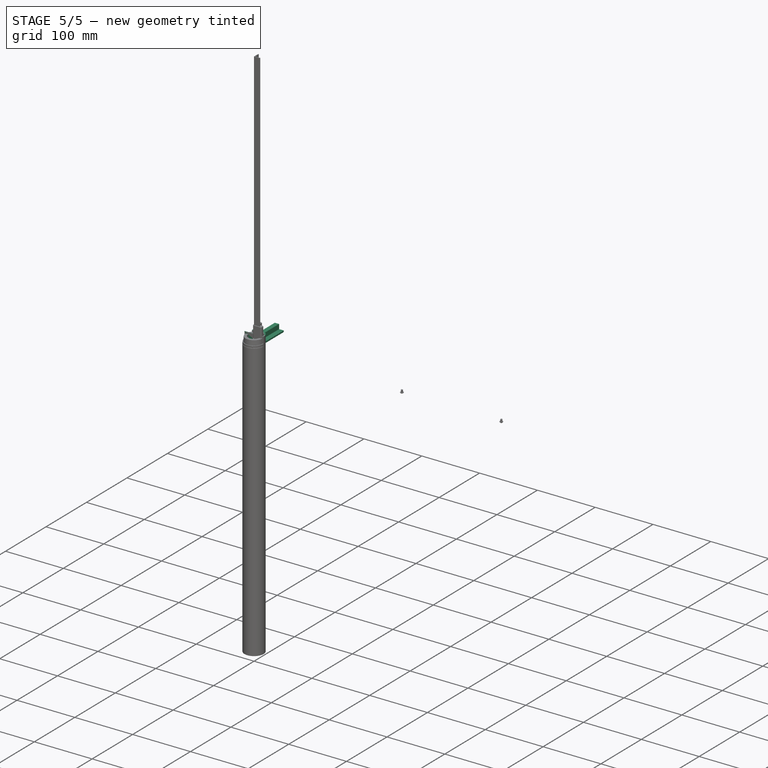
[diagram: stage 5 of 5 — iso view after this stage's code; geometry added in this stage tinted green]
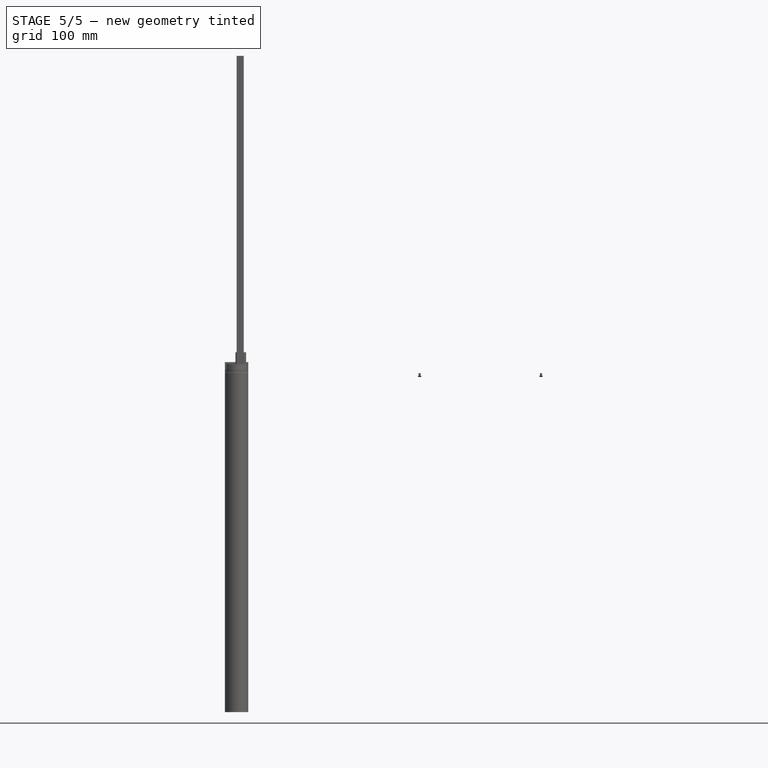
[diagram: stage 5 of 5 — front view after this stage's code; geometry added in this stage tinted green]
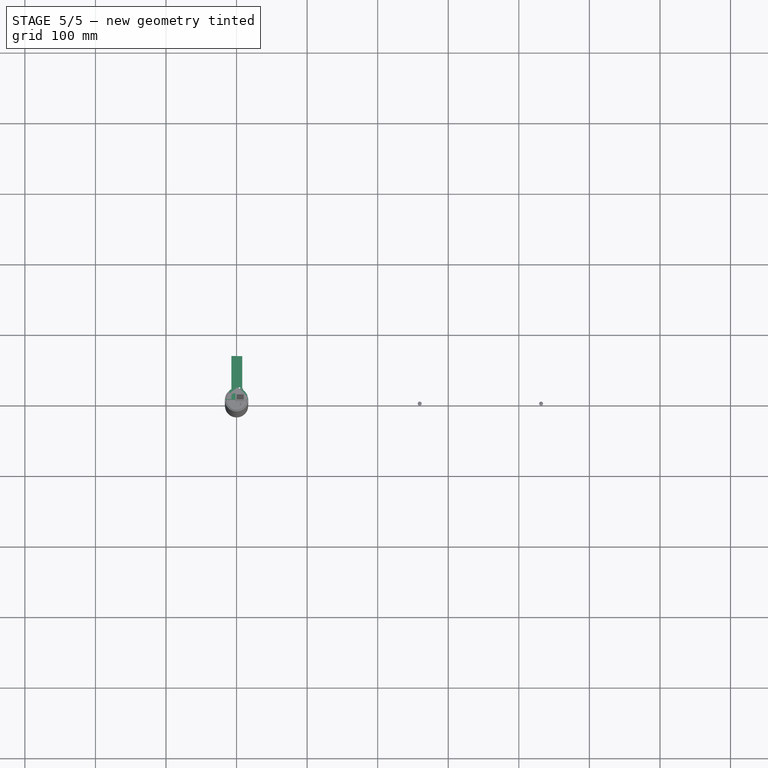
[diagram: stage 5 of 5 — top view after this stage's code; geometry added in this stage tinted green]
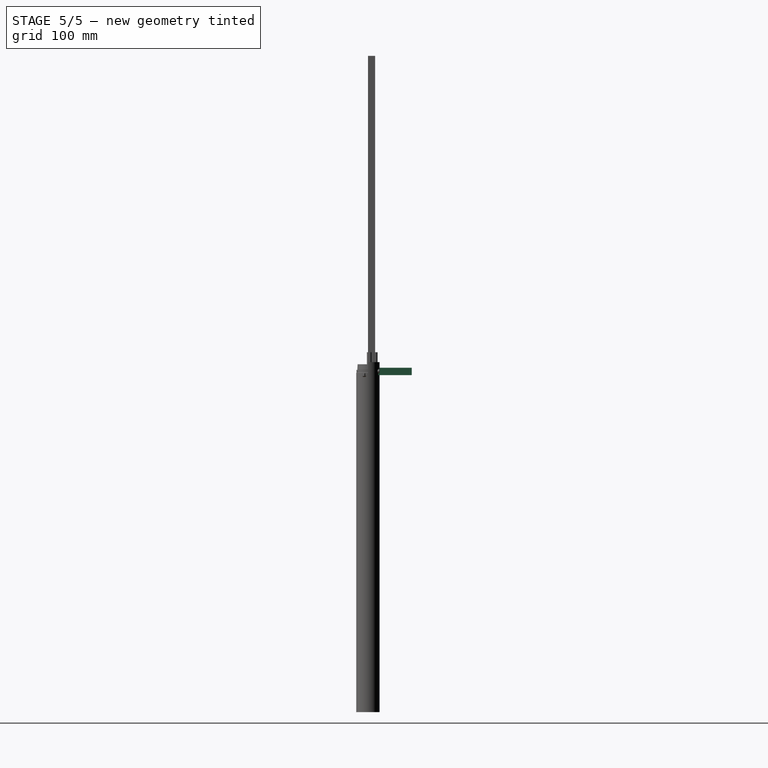
[diagram: stage 5 of 5 — right view after this stage's code; geometry added in this stage tinted green]
FEATURE [PartDesign::CoordinateSystem] LCS_Origin
  AttacherType = Attacher::AttachEngine3D
  MapMode = 2
  Support = -> [X_Axis]
FEATURE [App::DocumentObjectGroup] Constraints
FEATURE [App::FeaturePython] Variables  # WARN: FeaturePython — macro-defined, semantics opaque (R4)
  Type = App::PropertyContainer
  botcon_angle = 405
  botcon_xpos = -7.2
  botcon_xtravel = 3.2
  botcon_ypos = -27.45
  botcon_ytravel = 12.2
  botcon_zoffset = 452
  botcon_zpos_m1 = 437
  botcon_zpos_m3 = 501.818
  botcon_ztravel1 = 12
  botcon_ztravel3 = 32
  motion1_angle = 25
  motion1_angle_fin = -20
  motion1_duration = 8
  motion1_start = 10
  motion2_angle = -20
  motion2_duration = 8
  motion2_start = 18
  motion3_angle = -150
  motion3_angle_fin = 90
  motion3_duration = 22
  motion3_start = 26
  motion4_duration = 20
  motion4_end = 68
  motion4_start = 48
  motion4_stepsize = -24
  pipe_zoffset = -8
  pipe_zopen = -500
  pipeopen_xpos = -81.25
  pipeopen_ypos = -81.25
  pipeopen_zpos = -1708
  time = 0
  tube_zpos_open = -480
  expr: botcon_angle = -180 * (time - motion2_start) / motion2_duration
  expr: botcon_xpos = botcon_xtravel * (time - motion2_start) / motion2_duration
  expr: botcon_ypos = botcon_ytravel * (time - motion2_start) / motion2_duration
  expr: botcon_zpos_m1 = botcon_zoffset + botcon_ztravel1 * (time - motion1_start) / motion1_duration
  expr: botcon_zpos_m3 = botcon_zoffset + botcon_ztravel1 - botcon_ztravel3 * (time - motion3_start) / motion3_duration
  expr: motion1_angle = motion1_angle_fin * (time - motion1_start) / motion1_duration
  expr: motion2_angle = motion1_angle_fin
  expr: motion2_start = motion1_start + motion1_duration
  expr: motion3_angle = motion2_angle - (motion2_angle - motion3_angle_fin) * (time - motion3_start) / motion3_duration
  expr: motion3_start = motion2_start + motion2_duration
  expr: motion4_end = motion4_start + motion4_duration
  expr: motion4_start = motion3_start + motion3_duration
  expr: motion4_stepsize = tube_zpos_open / motion4_duration
  expr: pipeopen_xpos = -25 + 25 * (time - motion2_start) / motion2_duration
  expr: pipeopen_ypos = -25 + 25 * (time - motion2_start) / motion2_duration
  expr: pipeopen_zpos = pipe_zoffset + pipe_zopen - pipe_zopen * (time - motion4_start) / motion4_duration
FEATURE [App::DocumentObjectGroup] Configurations
FEATURE [Spreadsheet::Sheet] Spreadsheet
  cells = A2='screw_offset; B2(screw_offset)=6.5; A3='w_wall_center; B3(w_wall_center)=1.5; A5='motionAngle; B5(motionAngle)=20; A6='r_topBlock; B6(r_topBlock)=17.5; A7='w_topRail; B7(w_topRail)=8.1; A8='w_wall_outer; B8(w_wall_outer)=3; A10='w_topBlock; B10(w_topBlock)==2 * r_inner; A12='h_topBlockBase; B12(h_topBlockBase)=12; A14='d_locking_holes; B14(d_locking_holes)==2 * screw_offset; A15='l_sliding_hole; B15(l_sliding_hole)=6; A17='l_arms; B17(l_arms)=450; A18='d_led_screws; B18(d_led_screws)=200; A20='r_dn32_inner; B20(r_dn32_inner)==29.25 / 2; A21='r_dn32_outer; B21(r_dn32_outer)==33 / 2; A23='r_outer; B23(r_outer)==r_dn32_outer; A24='r_inner; B24(r_inner)==r_dn32_inner; A26='led_screw_offset; B26(led_screw_offset)==200 - 2 * 14; A27='led_screw_pos; B27(led_screw_pos)=425
FEATURE [PartDesign::Plane] DatumPlane
  AttachmentOffset = pos=(0,0,12) rot=(0,0,1;0rad)
  Length = 60
  MapMode = 2
  Placement = pos=(4.7e-15,12,-4.7e-15) rot=(0.57735,0.57735,0.57735;4.18879rad)
  ResizeMode = 0
  Support = -> [Z_Axis001]
  Width = 60
FEATURE [PartDesign::Plane] DatumPlane001
  AttachmentOffset = pos=(0,0,30) rot=(0,0,1;0rad)
  Length = 60
  MapMode = 2
  Placement = pos=(0,0,30) rot=(0,0,1;0rad)
  ResizeMode = 0
  Support = -> [X_Axis023]
  Width = 60
FEATURE [PartDesign::Plane] DatumPlane002
  AttachmentOffset = pos=(0,0,-12) rot=(0,0,1;0rad)
  Length = 60
  MapMode = 5
  Placement = pos=(0,0,-12) rot=(0,0,1;0rad)
  ResizeMode = 0
  Support = -> [XY_Plane021]
  Width = 60
  expr: .AttachmentOffset.Base.z = -Spreadsheet.h_topBlockBase
FEATURE [PartDesign::CoordinateSystem] LCS_0
  AttacherType = Attacher::AttachEngine3D
  MapMode = 2
  Support = -> [X_Axis001]
FEATURE [PartDesign::CoordinateSystem] LCS_0001
  AttacherType = Attacher::AttachEngine3D
  MapMode = 2
  Support = -> [X_Axis002]
FEATURE [PartDesign::CoordinateSystem] LCS_0002
  AttacherType = Attacher::AttachEngine3D
  MapMode = 2
  Support = -> [X_Axis021]
FEATURE [PartDesign::CoordinateSystem] LCS_0003
  AttacherType = Attacher::AttachEngine3D
  MapMode = 2
  Support = -> [X_Axis022]
FEATURE [PartDesign::CoordinateSystem] LCS_0004
  AttacherType = Attacher::AttachEngine3D
  AttachmentOffset = pos=(0,0,2) rot=(1,0,0;0rad)
  MapMode = 2
  Placement = pos=(0,0,2) rot=(0,0,1;0rad)
  Support = -> [X_Axis023]
FEATURE [PartDesign::CoordinateSystem] LCS_0005
  AttacherType = Attacher::AttachEngine3D
  MapMode = 2
  Support = -> [X_Axis024]
FEATURE [PartDesign::CoordinateSystem] LCS_0006
  AttacherType = Attacher::AttachEngine3D
  MapMode = 2
  Support = -> [X_Axis025]
FEATURE [PartDesign::CoordinateSystem] LCS_0007
  AttacherType = Attacher::AttachEngine3D
  MapMode = 2
  Support = -> [X_Axis026]
FEATURE [PartDesign::CoordinateSystem] LCS_1
  AttacherType = Attacher::AttachEngine3D
  MapMode = 2
  Support = -> [X_Axis028]
FEATURE [PartDesign::CoordinateSystem] LCS_1003
  AttacherType = Attacher::AttachEngine3D
  MapMode = 2
  Support = -> [X_Axis029]
FEATURE [PartDesign::CoordinateSystem] LCS_angleBar10  label="LCS_Lprofile10"
  AttacherType = Attacher::AttachEngine3D
  MapMode = 2
  Support = -> [X_Axis006]
FEATURE [PartDesign::CoordinateSystem] LCS_bottom_blog
  AttacherType = Attacher::AttachEngine3D
  AttachmentOffset = pos=(5,0,0) rot=(0,0,1;0rad)
  MapMode = 2
  Placement = pos=(1.1e-15,1.1e-15,5) rot=(0.57735,-0.57735,0.57735;2.0944rad)
  Support = -> [Z_Axis030]
FEATURE [Sketcher::SketchObject] Sketch
  FullyConstrained = true
  MapMode = 5
  Support = -> [XY_Plane001]
  expr: Constraints[16] = Spreadsheet.r_inner
  expr: Constraints[5] = Spreadsheet.w_topRail
  expr: Constraints[6] = Spreadsheet.w_wall_center / 2
  expr: Constraints[9] = Spreadsheet.r_outer
  sketch-geometry (7):
    g0: LineSegment StartX=-16.5 StartY=2e-15 StartZ=0 EndX=16.5 EndY=0 EndZ=0
    g1: ArcOfCircle CenterX=0 CenterY=0 CenterZ=0 NormalX=0 NormalY=0 NormalZ=1 AngleXU=0 Radius=16.5 StartAngle=0 EndAngle=2.22189
    g2: LineSegment StartX=-16.4829 StartY=0.75 StartZ=0 EndX=14.6058 EndY=0.75 EndZ=0
    g3: LineSegment StartX=11.6434 StartY=8.85 StartZ=0 EndX=-10 EndY=8.85 EndZ=0
    g4: LineSegment StartX=-10 StartY=8.85 StartZ=0 EndX=-10 EndY=13.1244 EndZ=0
    g5: ArcOfCircle CenterX=0 CenterY=0 CenterZ=0 NormalX=0 NormalY=0 NormalZ=1 AngleXU=0 Radius=16.5 StartAngle=3.09612 EndAngle=3.14159
    g6: ArcOfCircle CenterX=0 CenterY=0 CenterZ=0 NormalX=0 NormalY=0 NormalZ=1 AngleXU=0 Radius=14.625 StartAngle=0.0513046 EndAngle=0.649927
  constraints (20):
    c: PointOnObject(g0,g-1)
    c: Coincident(g1,g-1)
    c: Horizontal(g2)
    c: Horizontal(g3)
    c: Coincident(g3,g4)
    c: DistanceY(g2,g3) = 8.1
    c: DistanceY(g0,g2) = 0.75
    c: Vertical(g4)
    c: Symmetric(g0,g0,g1)
    c: Radius(g1) = 16.5
    c: Coincident(g1,g0)
    c: Coincident(g5,g1)
    c: Coincident(g5,g0)
    c: Coincident(g5,g2)
    c: Coincident(g6,g2)
    c: Coincident(g6,g3)
    c: Radius(g6) = 14.625
    c: Coincident(g1,g6)
    c: Coincident(g1,g4)
    c: DistanceX(g3,g1) = 10
FEATURE [PartDesign::Pad] Pad009
  Direction = (0,0,1)
  Length = 16
  Length2 = 7.5
  Profile = -> Sketch
  Type = 4
FEATURE [Sketcher::SketchObject] Sketch033
  FullyConstrained = false
  MapMode = 5
  Placement = pos=(4.7e-15,12,-4.7e-15) rot=(0.57735,0.57735,0.57735;4.18879rad)
  Support = -> [DatumPlane]
  expr: Constraints[0] = Spreadsheet.screw_offset
  sketch-geometry (5):
    g0: Circle CenterX=3 CenterY=-6.5 CenterZ=0 NormalX=0 NormalY=0 NormalZ=1 AngleXU=0 Radius=6.70275
    g1: LineSegment StartX=9.70763 StartY=-19.5547 StartZ=0 EndX=-3.70763 EndY=-19.5547 EndZ=0
    g2: LineSegment StartX=-3.70763 StartY=-19.5547 StartZ=0 EndX=-3.70763 EndY=-6.5 EndZ=0
    g3: ArcOfCircle CenterX=3 CenterY=-6.5 CenterZ=0 NormalX=0 NormalY=0 NormalZ=1 AngleXU=0 Radius=6.70763 StartAngle=2e-16 EndAngle=3.14159
    g4: LineSegment StartX=9.70763 StartY=-6.5 StartZ=0 EndX=9.70763 EndY=-19.5547 EndZ=0
  constraints (10):
    c: DistanceY(g0,g-1) = 6.5
    c: DistanceX(g0) = 3
    c: Horizontal(g1)
    c: Coincident(g1,g2)
    c: Vertical(g2)
    c: Tangent(g2,g3) = 1.5708
    c: Tangent(g3,g4) = 1.5708
    c: Coincident(g1,g4)
    c: Vertical(g4)
    c: Coincident(g3,g0)
FEATURE [PartDesign::Pocket] Pocket
  BaseFeature = -> Pad009
  Direction = (-4e-16,-1,4e-16)
  Length = 8
  Length2 = 100
  Profile = -> Sketch033
  Type = 0
FEATURE [Sketcher::SketchObject] Sketch036
  AttachmentOffset = pos=(0,0,-16.5) rot=(0,0,1;0rad)
  FullyConstrained = true
  MapMode = 5
  Placement = pos=(0,16.5,3.7e-15) rot=(1,0,0;1.5708rad)
  Support = -> [XZ_Plane002]
  expr: .AttachmentOffset.Base.z = -Spreadsheet.r_outer
  expr: Constraints[1] = Spreadsheet.screw_offset
  sketch-geometry (1):
    g0: Circle CenterX=6.5 CenterY=3 CenterZ=0 NormalX=0 NormalY=0 NormalZ=1 AngleXU=0 Radius=1.5
  constraints (3):
    c: DistanceY(g0) = 3
    c: DistanceX(g0) = 6.5
    c: Radius(g0) = 1.5
FEATURE [PartDesign::Hole] Hole
  BaseFeature = -> Pocket
  CustomThreadClearance = 0
  Depth = 25
  DepthType = 0
  Diameter = 3.2
  DrillForDepth = false
  DrillPoint = 1
  DrillPointAngle = 118
  HoleCutCountersinkAngle = 90
  HoleCutCustomValues = false
  HoleCutDepth = 3.4
  HoleCutDiameter = 6
  HoleCutType = 9
  ModelThread = false
  Profile = -> Sketch036
  Reversed = true
  Tapered = false
  TaperedAngle = 90
  ThreadClass = 0
  ThreadDepth = 23.5
  ThreadDepthType = 0
  ThreadDirection = 0
  ThreadFit = 1
  ThreadSize = 9
  ThreadType = 1
  Threaded = false
  UseCustomThreadClearance = false
FEATURE [Sketcher::SketchObject] Sketch043
  AttachmentOffset = pos=(0,0,-5) rot=(0,0,1;0rad)
  FullyConstrained = false
  MapMode = 5
  Placement = pos=(0,0,-5) rot=(0,0,1;0rad)
  Support = -> [XY_Plane021]
  sketch-geometry (8):
    g0: LineSegment StartX=-18.5595 StartY=-1.55437 StartZ=0 EndX=-15.3093 EndY=-1.55437 EndZ=0
    g1: LineSegment StartX=-14.3506 StartY=-5.55437 StartZ=0 EndX=-18.5595 EndY=-5.55437 EndZ=0
    g2: LineSegment StartX=-18.5595 StartY=-5.55437 StartZ=0 EndX=-18.5595 EndY=-1.55437 EndZ=0
    g3: ArcOfCircle CenterX=0 CenterY=0 CenterZ=0 NormalX=0 NormalY=0 NormalZ=1 AngleXU=0 Radius=15.388 StartAngle=3.24278 EndAngle=3.51088
    g4: ArcOfCircle CenterX=0 CenterY=0 CenterZ=0 NormalX=0 NormalY=0 NormalZ=1 AngleXU=0 Radius=15.388 StartAngle=0.101185 EndAngle=0.369292
    g5: LineSegment StartX=14.3506 StartY=5.55437 StartZ=0 EndX=18.5595 EndY=5.55437 EndZ=0
    g6: LineSegment StartX=18.5595 StartY=5.55437 StartZ=0 EndX=18.5595 EndY=1.55437 EndZ=0
    g7: LineSegment StartX=18.5595 StartY=1.55437 StartZ=0 EndX=15.3093 EndY=1.55437 EndZ=0
  constraints (19):
    c: Coincident(g1,g2)
    c: Coincident(g2,g0)
    c: Horizontal(g0)
    c: Horizontal(g1)
    c: Vertical(g2)
    c: Coincident(g3,g-1)
    c: Coincident(g3,g0)
    c: Coincident(g3,g1)
    c: DistanceY(g2,g2) = 4
    c: Coincident(g4,g3)
    c: Coincident(g4,g5)
    c: Coincident(g5,g6)
    c: Vertical(g6)
    c: Coincident(g6,g7)
    c: Coincident(g7,g4)
    c: Horizontal(g5)
    c: Horizontal(g7)
    c: Symmetric(g4,g0,g3)
    c: Symmetric(g5,g1,g3)
FEATURE [Sketcher::SketchObject] Sketch045
  FullyConstrained = true
  MapMode = 5
  Placement = pos=(0,0,0) rot=(1,0,0;1.5708rad)
  Support = -> [XZ_Plane002]
  expr: Constraints[0] = Spreadsheet.screw_offset
  sketch-geometry (1):
    g0: Circle CenterX=-6.5 CenterY=3 CenterZ=0 NormalX=0 NormalY=0 NormalZ=1 AngleXU=0 Radius=1.4
  constraints (3):
    c: DistanceX(g0,g-1) = 6.5
    c: Radius(g0) = 1.4
    c: DistanceY(g0) = 3
FEATURE [PartDesign::Pocket] Pocket016
  BaseFeature = -> Hole
  Direction = (0,1,2e-16)
  Length = 16
  Length2 = 100
  Profile = -> Sketch045
  Refine = true
  Type = 0
FEATURE [Sketcher::SketchObject] Sketch048  label="sk_cuts001"
  FullyConstrained = true
  MapMode = 5
  Placement = pos=(0,0,1) rot=(0,0,1;3.14159rad)
  expr: Constraints[21] = Spreadsheet.d_locking_holes
  expr: Constraints[7] = Spreadsheet.l_sliding_hole
  sketch-geometry (11):
    g0: ArcOfCircle CenterX=-4 CenterY=-16.1368 CenterZ=0 NormalX=0 NormalY=0 NormalZ=1 AngleXU=0 Radius=1.6 StartAngle=3.14159 EndAngle=6.28319
    g1: ArcOfCircle CenterX=-4 CenterY=-10.1368 CenterZ=0 NormalX=0 NormalY=0 NormalZ=1 AngleXU=0 Radius=1.6 StartAngle=-2.31e-14 EndAngle=3.14159
    g2: LineSegment StartX=-2.4 StartY=-16.1368 StartZ=0 EndX=-2.4 EndY=-10.1368 EndZ=0
    g3: LineSegment StartX=-5.6 StartY=-16.1368 StartZ=0 EndX=-5.6 EndY=-10.1368 EndZ=0
    g4: LineSegment StartX=-8.5 StartY=0 StartZ=0 EndX=-5.46191 EndY=0 EndZ=0
    g5: LineSegment StartX=-5.46191 StartY=0 StartZ=0 EndX=-5.82588 EndY=-1 EndZ=0
    g6: LineSegment StartX=-5.45 StartY=-1.53681 StartZ=0 EndX=-4 EndY=-1.53681 EndZ=0
    g7: ArcOfCircle CenterX=-4 CenterY=-3.13681 CenterZ=0 NormalX=0 NormalY=0 NormalZ=1 AngleXU=0 Radius=1.6 StartAngle=4.87572 EndAngle=7.85398
    g8: LineSegment StartX=-8.5 StartY=-5.5 StartZ=0 EndX=-8.5 EndY=0 EndZ=0
    g9: ArcOfCircle CenterX=-5.45 CenterY=-1.13681 CenterZ=0 NormalX=0 NormalY=0 NormalZ=1 AngleXU=0 Radius=0.4 StartAngle=2.79253 EndAngle=4.71239
    g10: LineSegment StartX=-8.5 StartY=-5.5 StartZ=0 EndX=-3.73983 EndY=-4.71551 EndZ=0
  constraints (29):
    c: Tangent(g0,g3) = 1.5708
    c: Tangent(g0,g2) = -1.5708
    c: Tangent(g2,g1) = -1.5708
    c: Tangent(g3,g1) = 1.5708
    c: Vertical(g2)
    c: Equal(g0,g1)
    c: Radius(g0) = 1.6
    c: DistanceY(g2,g2) = 6
    c: Coincident(g4,g5)
    c: Tangent(g6,g7) = 1.5708
    c: Coincident(g8,g4)
    c: Vertical(g8)
    c: Horizontal(g4)
    c: Horizontal(g6)
    c: Radius(g7) = 1.6
    c: Tangent(g6,g9) = -1.5708
    c: DistanceX(g6,g6) = 1.45
    c: Radius(g9) = 0.4
    c: DistanceX(g0) = -4
    c: DistanceX(g7) = -4
    c: Tangent(g5,g9) = -1.5708
    c: DistanceY(g0,g7) = 13
    c: DistanceY(g8,g8) = 5.5
    c: Angle(g4,g5) = 1.22173
    c: Tangent(g7,g10) = -1.5708
    c: Coincident(g8,g10)
    c: DistanceX(g4,g-1) = 8.5
    c: DistanceY(g5,g-1) = 1
    c: PointOnObject(g4,g-1)
FEATURE [PartDesign::ShapeBinder] ShapeBinder
  Placement = pos=(0,0,1) rot=(0,0,1;3.14159rad)
  Support = -> [Sketch048]
  TraceSupport = false
FEATURE [Sketcher::SketchObject] Sketch049
  FullyConstrained = false
  MapMode = 5
  Placement = pos=(0,0,0) rot=(1,0,0;1.5708rad)
  Support = -> [XZ_Plane024]
  sketch-geometry (6):
    g0: LineSegment StartX=0 StartY=8 StartZ=0 EndX=0 EndY=0 EndZ=0
    g1: LineSegment StartX=0 StartY=0 StartZ=0 EndX=8 EndY=0 EndZ=0
    g2: LineSegment StartX=8 StartY=0 StartZ=0 EndX=8 EndY=-2.47577 EndZ=0
    g3: LineSegment StartX=8 StartY=-2.47577 StartZ=0 EndX=-7.32977 EndY=-2.47577 EndZ=0
    g4: LineSegment StartX=-7.32977 StartY=-2.47577 StartZ=0 EndX=-7.32977 EndY=8 EndZ=0
    g5: LineSegment StartX=-7.32977 StartY=8 StartZ=0 EndX=0 EndY=8 EndZ=0
  constraints (15):
    c: PointOnObject(g0,g-2)
    c: Coincident(g0,g-1)
    c: Coincident(g0,g1)
    c: PointOnObject(g1,g-1)
    c: Coincident(g1,g2)
    c: Vertical(g2)
    c: Coincident(g2,g3)
    c: Horizontal(g3)
    c: Coincident(g3,g4)
    c: Vertical(g4)
    c: Coincident(g4,g5)
    c: Coincident(g5,g0)
    c: Horizontal(g5)
    c: DistanceX(g1,g1) = 8
    c: Equal(g0,g1)
FEATURE [PartDesign::Pad] Pad014
  Direction = (1,1,1)
  Length = 62
  Length2 = 100
  Placement = pos=(0,0,0) rot=(1,0,0;1.5708rad)
  Profile = -> Sketch049
  Refine = true
  Reversed = true
  Type = 0
FEATURE [PartDesign::Pocket] Pocket017
  BaseFeature = -> Pad014
  Direction = (0,0,-1)
  Length = 5
  Length2 = 100
  Placement = pos=(0,0,0) rot=(1,0,0;1.5708rad)
  Profile = -> ShapeBinder
  Refine = true
  Type = 0
FEATURE [Sketcher::SketchObject] Sketch050
  FullyConstrained = true
  MapMode = 5
  Support = -> [XY_Plane025]
  sketch-geometry (1):
    g0: Circle CenterX=0 CenterY=0 CenterZ=0 NormalX=0 NormalY=0 NormalZ=1 AngleXU=0 Radius=16.5
  constraints (2):
    c: Coincident(g0,g-1)
    c: Radius(g0) = 16.5
FEATURE [PartDesign::Pad] Pad015
  Direction = (1,1,1)
  Length = 2
  Length2 = 100
  Profile = -> Sketch050
  Type = 0
FEATURE [PartDesign::Fillet] Fillet
  Base = -> Pad015 [Edge3]
  BaseFeature = -> Pad015
  Radius = 1.3
  SupportTransform = false
  UseAllEdges = false
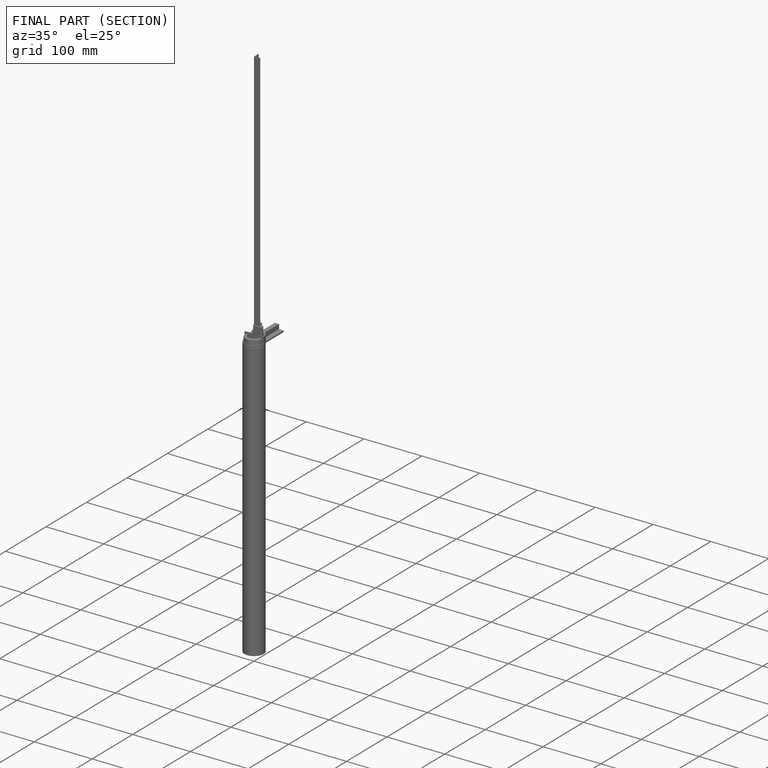
[diagram: finished part — half-section view (interior)]
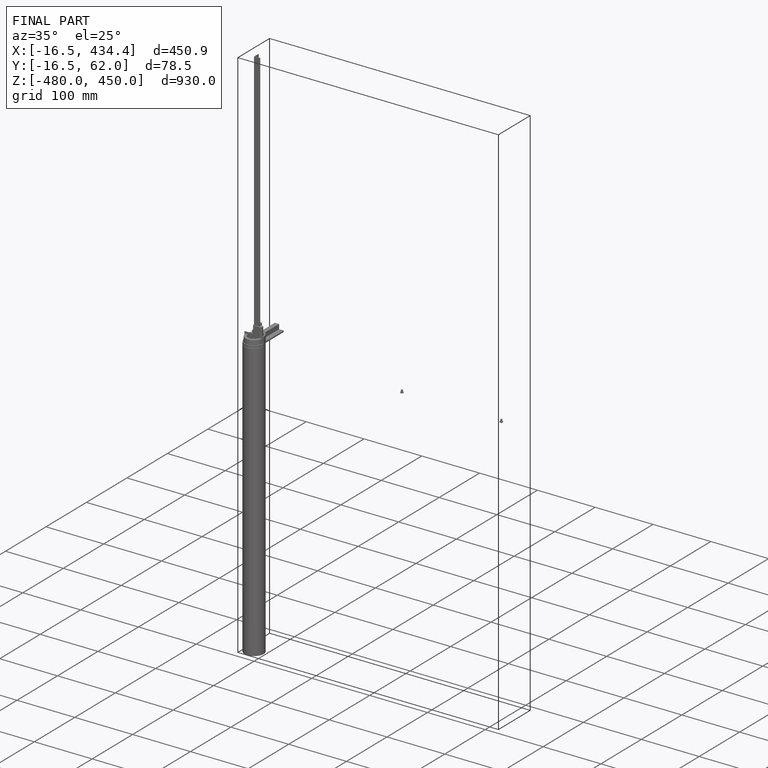
[diagram: finished part — iso view with bounding-box wireframe]
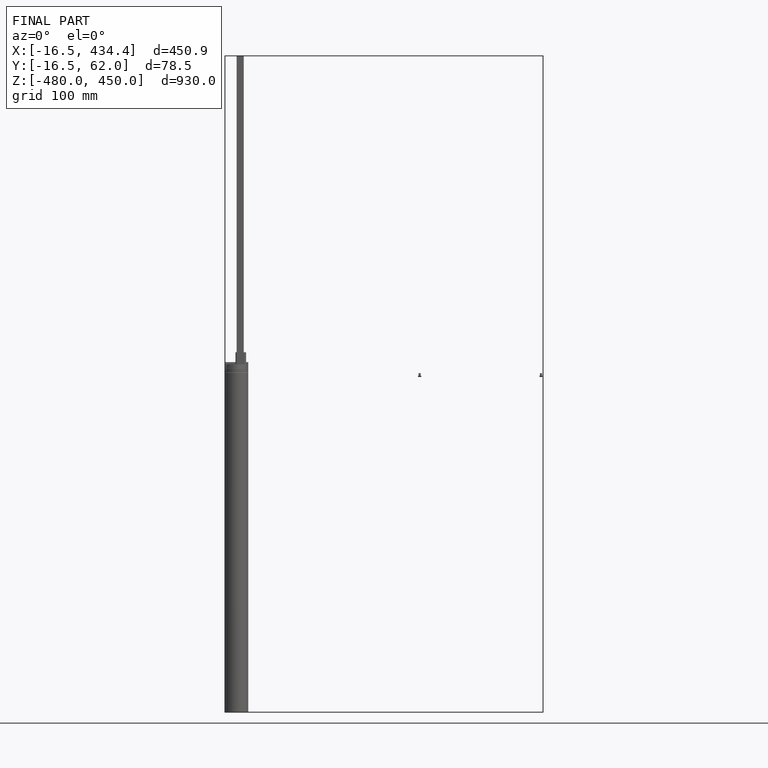
[diagram: finished part — front view with bounding-box wireframe]
